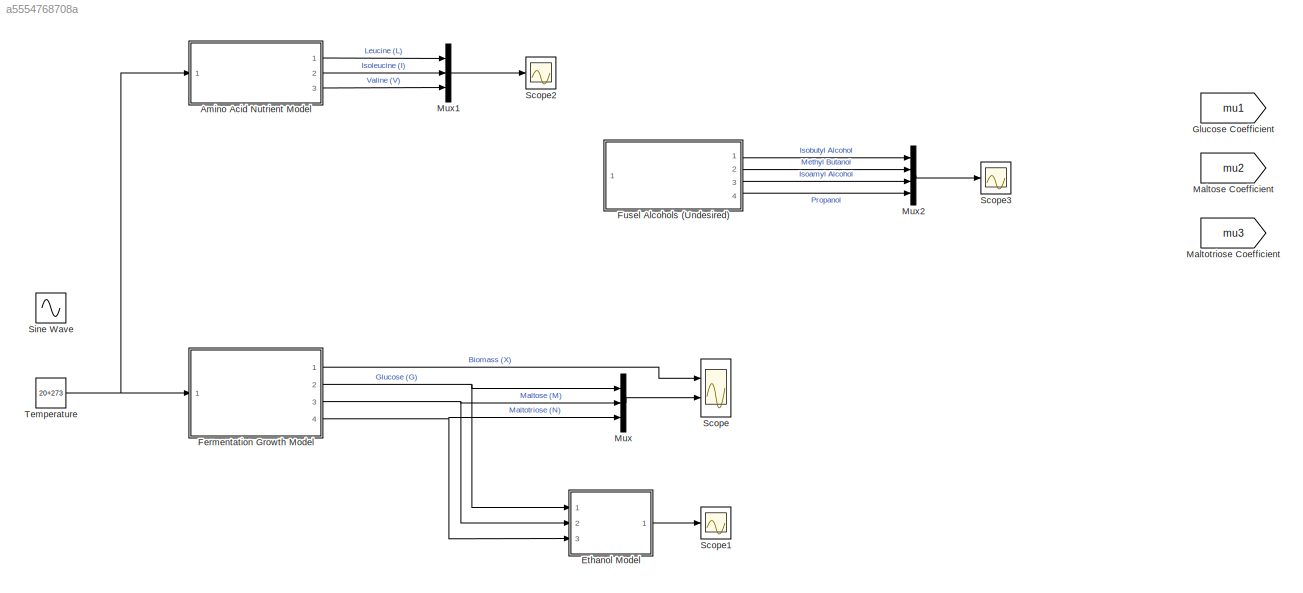
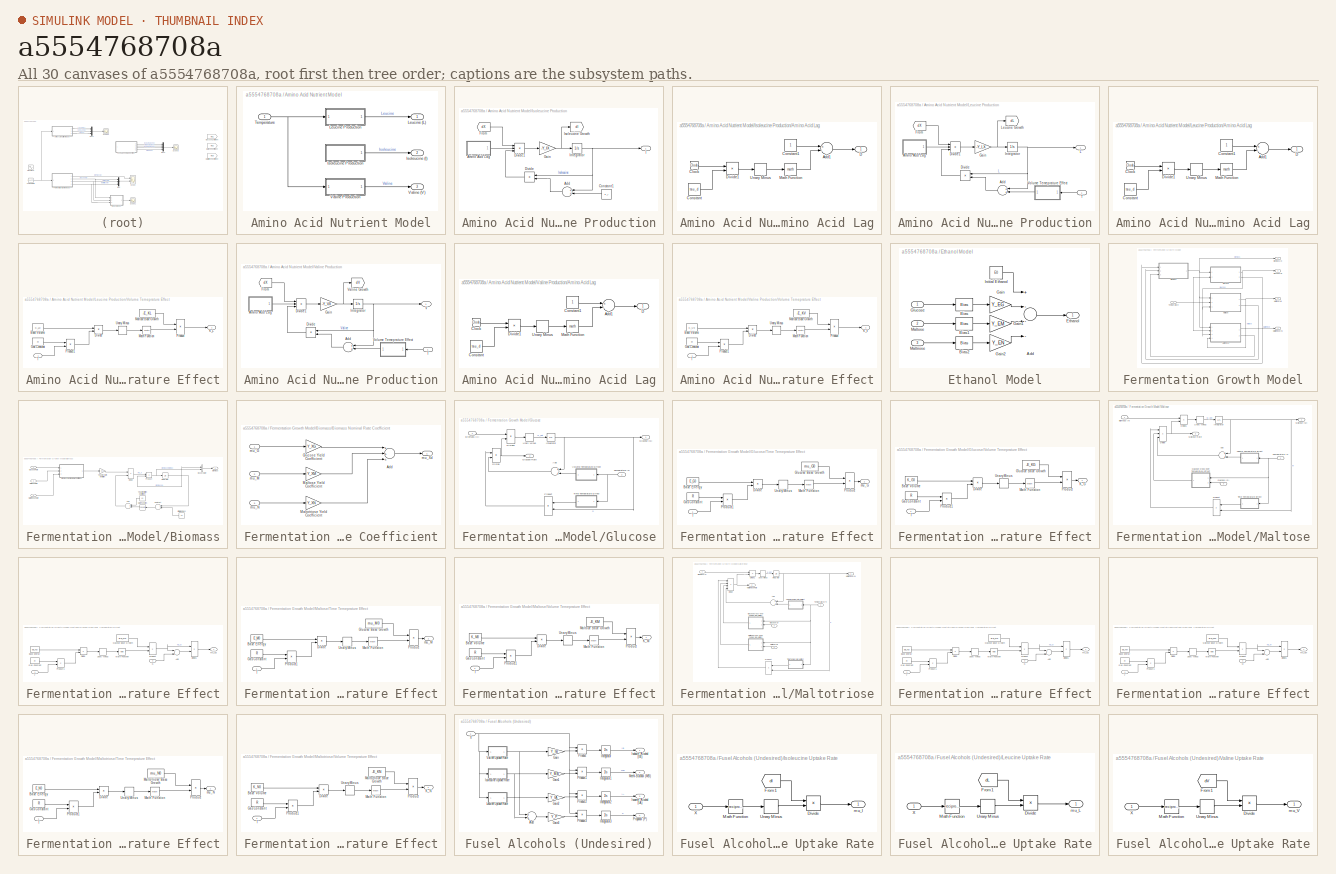
[diagram: thumbnail index - all 30 canvases of the model, root first then tree order]
MODEL slx_a5554768708a
KIND model
CONFIG InitFcn = initParams();
BLOCK [SubSystem] Amino Acid Nutrient Model
  Ports = [1, 3]
  RequestExecContextInheritance = off
BLOCK [Outport] Amino Acid Nutrient Model/Isoleucine (I)
  IconDisplay = Port number
  Port = 2
BLOCK [SubSystem] Amino Acid Nutrient Model/Isoleucine Production
  Ports = [0, 1]
  RequestExecContextInheritance = off
BLOCK [Sum] Amino Acid Nutrient Model/Isoleucine Production/Add
  InputSameDT = off
  OutDataTypeStr = Inherit: Inherit via internal rule
  Ports = [2, 1]
  SaturateOnIntegerOverflow = off
BLOCK [SubSystem] Amino Acid Nutrient Model/Isoleucine Production/Amino Acid Lag
  Ports = [0, 1]
  RequestExecContextInheritance = off
BLOCK [Sum] Amino Acid Nutrient Model/Isoleucine Production/Amino Acid Lag/Add1
  InputSameDT = off
  Inputs = +-
  OutDataTypeStr = Inherit: Inherit via internal rule
  Ports = [2, 1]
  SaturateOnIntegerOverflow = off
BLOCK [Clock] Amino Acid Nutrient Model/Isoleucine Production/Amino Acid Lag/Clock
BLOCK [Constant] Amino Acid Nutrient Model/Isoleucine Production/Amino Acid Lag/Constant
  Value = tau_d
BLOCK [Constant] Amino Acid Nutrient Model/Isoleucine Production/Amino Acid Lag/Constant1
BLOCK [Outport] Amino Acid Nutrient Model/Isoleucine Production/Amino Acid Lag/D
  IconDisplay = Port number
BLOCK [Product] Amino Acid Nutrient Model/Isoleucine Production/Amino Acid Lag/Divide1
  InputSameDT = off
  Inputs = */
  OutDataTypeStr = Inherit: Inherit via internal rule
  Ports = [2, 1]
  RndMeth = Floor
  SaturateOnIntegerOverflow = off
BLOCK [Math] Amino Acid Nutrient Model/Isoleucine Production/Amino Acid Lag/Math Function
  Ports = [1, 1]
BLOCK [UnaryMinus] Amino Acid Nutrient Model/Isoleucine Production/Amino Acid Lag/Unary Minus
BLOCK [Constant] Amino Acid Nutrient Model/Isoleucine Production/Constant1
  Value = K_I
BLOCK [Product] Amino Acid Nutrient Model/Isoleucine Production/Divide
  InputSameDT = off
  Inputs = */
  OutDataTypeStr = Inherit: Inherit via internal rule
  Ports = [2, 1]
  RndMeth = Floor
  SaturateOnIntegerOverflow = off
BLOCK [Product] Amino Acid Nutrient Model/Isoleucine Production/Divide1
  InputSameDT = off
  Inputs = ***
  OutDataTypeStr = Inherit: Inherit via internal rule
  Ports = [3, 1]
  RndMeth = Floor
  SaturateOnIntegerOverflow = off
BLOCK [From] Amino Acid Nutrient Model/Isoleucine Production/From
  GotoTag = dX
  TagVisibility = global
BLOCK [Gain] Amino Acid Nutrient Model/Isoleucine Production/Gain
  Gain = -Y_IX
  OutDataTypeStr = Inherit: Inherit via internal rule
  ParamDataTypeStr = Inherit: Inherit via internal rule
  SaturateOnIntegerOverflow = off
BLOCK [Outport] Amino Acid Nutrient Model/Isoleucine Production/I
  IconDisplay = Port number
BLOCK [Integrator] Amino Acid Nutrient Model/Isoleucine Production/Integrator
  InitialCondition = I0
  Ports = [1, 1]
BLOCK [Goto] Amino Acid Nutrient Model/Isoleucine Production/Isoleucine Growth
  GotoTag = dI
  TagVisibility = global
BLOCK [Outport] Amino Acid Nutrient Model/Leucine (L)
  IconDisplay = Port number
BLOCK [SubSystem] Amino Acid Nutrient Model/Leucine Production
  Ports = [1, 1]
  RequestExecContextInheritance = off
BLOCK [Sum] Amino Acid Nutrient Model/Leucine Production/Add
  InputSameDT = off
  OutDataTypeStr = Inherit: Inherit via internal rule
  Ports = [2, 1]
  SaturateOnIntegerOverflow = off
BLOCK [SubSystem] Amino Acid Nutrient Model/Leucine Production/Amino Acid Lag
  Ports = [0, 1]
  RequestExecContextInheritance = off
BLOCK [Sum] Amino Acid Nutrient Model/Leucine Production/Amino Acid Lag/Add1
  InputSameDT = off
  Inputs = +-
  OutDataTypeStr = Inherit: Inherit via internal rule
  Ports = [2, 1]
  SaturateOnIntegerOverflow = off
BLOCK [Clock] Amino Acid Nutrient Model/Leucine Production/Amino Acid Lag/Clock
BLOCK [Constant] Amino Acid Nutrient Model/Leucine Production/Amino Acid Lag/Constant
  Value = tau_d
BLOCK [Constant] Amino Acid Nutrient Model/Leucine Production/Amino Acid Lag/Constant1
BLOCK [Outport] Amino Acid Nutrient Model/Leucine Production/Amino Acid Lag/D
  IconDisplay = Port number
BLOCK [Product] Amino Acid Nutrient Model/Leucine Production/Amino Acid Lag/Divide1
  InputSameDT = off
  Inputs = */
  OutDataTypeStr = Inherit: Inherit via internal rule
  Ports = [2, 1]
  RndMeth = Floor
  SaturateOnIntegerOverflow = off
BLOCK [Math] Amino Acid Nutrient Model/Leucine Production/Amino Acid Lag/Math Function
  Ports = [1, 1]
BLOCK [UnaryMinus] Amino Acid Nutrient Model/Leucine Production/Amino Acid Lag/Unary Minus
BLOCK [Product] Amino Acid Nutrient Model/Leucine Production/Divide
  InputSameDT = off
  Inputs = */
  OutDataTypeStr = Inherit: Inherit via internal rule
  Ports = [2, 1]
  RndMeth = Floor
  SaturateOnIntegerOverflow = off
BLOCK [Product] Amino Acid Nutrient Model/Leucine Production/Divide1
  InputSameDT = off
  Inputs = ***
  OutDataTypeStr = Inherit: Inherit via internal rule
  Ports = [3, 1]
  RndMeth = Floor
  SaturateOnIntegerOverflow = off
BLOCK [From] Amino Acid Nutrient Model/Leucine Production/From
  GotoTag = dX
  TagVisibility = global
BLOCK [Gain] Amino Acid Nutrient Model/Leucine Production/Gain
  Gain = -Y_LX
  OutDataTypeStr = Inherit: Inherit via internal rule
  ParamDataTypeStr = Inherit: Inherit via internal rule
  SaturateOnIntegerOverflow = off
BLOCK [Integrator] Amino Acid Nutrient Model/Leucine Production/Integrator
  InitialCondition = L0
  Ports = [1, 1]
BLOCK [Outport] Amino Acid Nutrient Model/Leucine Production/L
  IconDisplay = Port number
BLOCK [Goto] Amino Acid Nutrient Model/Leucine Production/Leucine Growth
  GotoTag = dL
  TagVisibility = global
BLOCK [Inport] Amino Acid Nutrient Model/Leucine Production/T
  IconDisplay = Port number
BLOCK [SubSystem] Amino Acid Nutrient Model/Leucine Production/Volume Temeprature Effect
  Ports = [1, 1]
  RequestExecContextInheritance = off
BLOCK [Constant] Amino Acid Nutrient Model/Leucine Production/Volume Temeprature Effect/Base Volume
  Value = K_L0
BLOCK [Product] Amino Acid Nutrient Model/Leucine Production/Volume Temeprature Effect/Divide
  InputSameDT = off
  Inputs = */
  OutDataTypeStr = Inherit: Inherit via internal rule
  Ports = [2, 1]
  RndMeth = Floor
  SaturateOnIntegerOverflow = off
BLOCK [Constant] Amino Acid Nutrient Model/Leucine Production/Volume Temeprature Effect/Gas Constant
  Value = R
BLOCK [Outport] Amino Acid Nutrient Model/Leucine Production/Volume Temeprature Effect/K_L
  IconDisplay = Port number
BLOCK [Constant] Amino Acid Nutrient Model/Leucine Production/Volume Temeprature Effect/Maltose Base Growth
  Value = -E_KL
BLOCK [Math] Amino Acid Nutrient Model/Leucine Production/Volume Temeprature Effect/Math Function
  Ports = [1, 1]
BLOCK [Product] Amino Acid Nutrient Model/Leucine Production/Volume Temeprature Effect/Product
  InputSameDT = off
  OutDataTypeStr = Inherit: Inherit via internal rule
  Ports = [2, 1]
  RndMeth = Floor
  SaturateOnIntegerOverflow = off
BLOCK [Product] Amino Acid Nutrient Model/Leucine Production/Volume Temeprature Effect/Product1
  InputSameDT = off
  OutDataTypeStr = Inherit: Inherit via internal rule
  Ports = [2, 1]
  RndMeth = Floor
  SaturateOnIntegerOverflow = off
BLOCK [Inport] Amino Acid Nutrient Model/Leucine Production/Volume Temeprature Effect/T
  IconDisplay = Port number
BLOCK [UnaryMinus] Amino Acid Nutrient Model/Leucine Production/Volume Temeprature Effect/Unary Minus
BLOCK [Inport] Amino Acid Nutrient Model/Temperature
  IconDisplay = Port number
BLOCK [Outport] Amino Acid Nutrient Model/Valine (V)
  IconDisplay = Port number
  Port = 3
BLOCK [SubSystem] Amino Acid Nutrient Model/Valine Production
  Ports = [1, 1]
  RequestExecContextInheritance = off
BLOCK [Sum] Amino Acid Nutrient Model/Valine Production/Add
  InputSameDT = off
  OutDataTypeStr = Inherit: Inherit via internal rule
  Ports = [2, 1]
  SaturateOnIntegerOverflow = off
BLOCK [SubSystem] Amino Acid Nutrient Model/Valine Production/Amino Acid Lag
  Ports = [0, 1]
  RequestExecContextInheritance = off
BLOCK [Sum] Amino Acid Nutrient Model/Valine Production/Amino Acid Lag/Add1
  InputSameDT = off
  Inputs = +-
  OutDataTypeStr = Inherit: Inherit via internal rule
  Ports = [2, 1]
  SaturateOnIntegerOverflow = off
BLOCK [Clock] Amino Acid Nutrient Model/Valine Production/Amino Acid Lag/Clock
BLOCK [Constant] Amino Acid Nutrient Model/Valine Production/Amino Acid Lag/Constant
  Value = tau_d
BLOCK [Constant] Amino Acid Nutrient Model/Valine Production/Amino Acid Lag/Constant1
BLOCK [Outport] Amino Acid Nutrient Model/Valine Production/Amino Acid Lag/D
  IconDisplay = Port number
BLOCK [Product] Amino Acid Nutrient Model/Valine Production/Amino Acid Lag/Divide1
  InputSameDT = off
  Inputs = */
  OutDataTypeStr = Inherit: Inherit via internal rule
  Ports = [2, 1]
  RndMeth = Floor
  SaturateOnIntegerOverflow = off
BLOCK [Math] Amino Acid Nutrient Model/Valine Production/Amino Acid Lag/Math Function
  Ports = [1, 1]
BLOCK [UnaryMinus] Amino Acid Nutrient Model/Valine Production/Amino Acid Lag/Unary Minus
BLOCK [Product] Amino Acid Nutrient Model/Valine Production/Divide
  InputSameDT = off
  Inputs = */
  OutDataTypeStr = Inherit: Inherit via internal rule
  Ports = [2, 1]
  RndMeth = Floor
  SaturateOnIntegerOverflow = off
BLOCK [Product] Amino Acid Nutrient Model/Valine Production/Divide1
  InputSameDT = off
  Inputs = ***
  OutDataTypeStr = Inherit: Inherit via internal rule
  Ports = [3, 1]
  RndMeth = Floor
  SaturateOnIntegerOverflow = off
BLOCK [From] Amino Acid Nutrient Model/Valine Production/From
  GotoTag = dX
  TagVisibility = global
BLOCK [Gain] Amino Acid Nutrient Model/Valine Production/Gain
  Gain = -Y_VX
  OutDataTypeStr = Inherit: Inherit via internal rule
  ParamDataTypeStr = Inherit: Inherit via internal rule
  SaturateOnIntegerOverflow = off
BLOCK [Integrator] Amino Acid Nutrient Model/Valine Production/Integrator
  InitialCondition = V0
  Ports = [1, 1]
BLOCK [Inport] Amino Acid Nutrient Model/Valine Production/T
  IconDisplay = Port number
BLOCK [Outport] Amino Acid Nutrient Model/Valine Production/V
  IconDisplay = Port number
BLOCK [Goto] Amino Acid Nutrient Model/Valine Production/Valine Growth
  GotoTag = dV
  TagVisibility = global
BLOCK [SubSystem] Amino Acid Nutrient Model/Valine Production/Volume Temeprature Effect
  Ports = [1, 1]
  RequestExecContextInheritance = off
BLOCK [Constant] Amino Acid Nutrient Model/Valine Production/Volume Temeprature Effect/Base Volume
  Value = K_V0
BLOCK [Product] Amino Acid Nutrient Model/Valine Production/Volume Temeprature Effect/Divide
  InputSameDT = off
  Inputs = */
  OutDataTypeStr = Inherit: Inherit via internal rule
  Ports = [2, 1]
  RndMeth = Floor
  SaturateOnIntegerOverflow = off
BLOCK [Constant] Amino Acid Nutrient Model/Valine Production/Volume Temeprature Effect/Gas Constant
  Value = R
BLOCK [Outport] Amino Acid Nutrient Model/Valine Production/Volume Temeprature Effect/K_V
  IconDisplay = Port number
BLOCK [Constant] Amino Acid Nutrient Model/Valine Production/Volume Temeprature Effect/Maltose Base Growth
  Value = -E_KV
BLOCK [Math] Amino Acid Nutrient Model/Valine Production/Volume Temeprature Effect/Math Function
  Ports = [1, 1]
BLOCK [Product] Amino Acid Nutrient Model/Valine Production/Volume Temeprature Effect/Product
  InputSameDT = off
  OutDataTypeStr = Inherit: Inherit via internal rule
  Ports = [2, 1]
  RndMeth = Floor
  SaturateOnIntegerOverflow = off
BLOCK [Product] Amino Acid Nutrient Model/Valine Production/Volume Temeprature Effect/Product1
  InputSameDT = off
  OutDataTypeStr = Inherit: Inherit via internal rule
  Ports = [2, 1]
  RndMeth = Floor
  SaturateOnIntegerOverflow = off
BLOCK [Inport] Amino Acid Nutrient Model/Valine Production/Volume Temeprature Effect/T
  IconDisplay = Port number
BLOCK [UnaryMinus] Amino Acid Nutrient Model/Valine Production/Volume Temeprature Effect/Unary Minus
BLOCK [SubSystem] Ethanol Model
  Ports = [3, 1]
  RequestExecContextInheritance = off
BLOCK [Sum] Ethanol Model/Add
  InputSameDT = off
  Inputs = +---
  OutDataTypeStr = Inherit: Inherit via internal rule
  Ports = [4, 1]
  SaturateOnIntegerOverflow = off
BLOCK [Bias] Ethanol Model/Bias
  Bias = -G0
  SaturateOnIntegerOverflow = off
BLOCK [Bias] Ethanol Model/Bias1
  Bias = -M0
  SaturateOnIntegerOverflow = off
BLOCK [Bias] Ethanol Model/Bias2
  Bias = -N0
  SaturateOnIntegerOverflow = off
BLOCK [Outport] Ethanol Model/Ethanol
  IconDisplay = Port number
BLOCK [Gain] Ethanol Model/Gain
  Gain = Y_EG
  OutDataTypeStr = Inherit: Inherit via internal rule
  ParamDataTypeStr = Inherit: Inherit via internal rule
  SaturateOnIntegerOverflow = off
BLOCK [Gain] Ethanol Model/Gain1
  Gain = Y_EM
  OutDataTypeStr = Inherit: Inherit via internal rule
  ParamDataTypeStr = Inherit: Inherit via internal rule
  SaturateOnIntegerOverflow = off
BLOCK [Gain] Ethanol Model/Gain2
  Gain = Y_EN
  OutDataTypeStr = Inherit: Inherit via internal rule
  ParamDataTypeStr = Inherit: Inherit via internal rule
  SaturateOnIntegerOverflow = off
BLOCK [Inport] Ethanol Model/Glucose
  IconDisplay = Port number
BLOCK [Constant] Ethanol Model/Initial Ethanol
  Value = E0
BLOCK [Inport] Ethanol Model/Maltose
  IconDisplay = Port number
  Port = 2
BLOCK [Inport] Ethanol Model/Maltriose
  IconDisplay = Port number
  Port = 3
BLOCK [SubSystem] Fermentation Growth Model
  Ports = [1, 4]
  RequestExecContextInheritance = off
BLOCK [SubSystem] Fermentation Growth Model/Biomass
  Ports = [3, 1]
  RequestExecContextInheritance = off
BLOCK [Outport] Fermentation Growth Model/Biomass (X)
  IconDisplay = Port number
BLOCK [Sum] Fermentation Growth Model/Biomass/Add
  InputSameDT = off
  OutDataTypeStr = Inherit: Inherit via internal rule
  Ports = [2, 1]
  SaturateOnIntegerOverflow = off
BLOCK [Outport] Fermentation Growth Model/Biomass/Biomass
  IconDisplay = Port number
BLOCK [SubSystem] Fermentation Growth Model/Biomass/Biomass Nominal Rate Coefficient
  Ports = [3, 1]
  RequestExecContextInheritance = off
BLOCK [Sum] Fermentation Growth Model/Biomass/Biomass Nominal Rate Coefficient/Add
  InputSameDT = off
  Inputs = +++
  OutDataTypeStr = Inherit: Inherit via internal rule
  Ports = [3, 1]
  SaturateOnIntegerOverflow = off
BLOCK [Gain] Fermentation Growth Model/Biomass/Biomass Nominal Rate Coefficient/Glucose Yield Coefficient
  Gain = Y_XG
  OutDataTypeStr = Inherit: Inherit via internal rule
  ParamDataTypeStr = Inherit: Inherit via internal rule
  SaturateOnIntegerOverflow = off
BLOCK [Gain] Fermentation Growth Model/Biomass/Biomass Nominal Rate Coefficient/Maltose Yield Coefficient
  Gain = Y_XM
  OutDataTypeStr = Inherit: Inherit via internal rule
  ParamDataTypeStr = Inherit: Inherit via internal rule
  SaturateOnIntegerOverflow = off
BLOCK [Gain] Fermentation Growth Model/Biomass/Biomass Nominal Rate Coefficient/Maltotriose Yield Coefficient
  Gain = Y_XN
  OutDataTypeStr = Inherit: Inherit via internal rule
  ParamDataTypeStr = Inherit: Inherit via internal rule
  SaturateOnIntegerOverflow = off
BLOCK [Inport] Fermentation Growth Model/Biomass/Biomass Nominal Rate Coefficient/mu_G
  IconDisplay = Port number
BLOCK [Inport] Fermentation Growth Model/Biomass/Biomass Nominal Rate Coefficient/mu_M
  IconDisplay = Port number
  Port = 2
BLOCK [Inport] Fermentation Growth Model/Biomass/Biomass Nominal Rate Coefficient/mu_N
  IconDisplay = Port number
  Port = 3
BLOCK [Outport] Fermentation Growth Model/Biomass/Biomass Nominal Rate Coefficient/mu_Xd
  IconDisplay = Port number
BLOCK [BusCreator] Fermentation Growth Model/Biomass/Bus Creator
  DisplayOption = bar
  Inputs = 2
  Ports = [2, 1]
BLOCK [Product] Fermentation Growth Model/Biomass/Divide
  InputSameDT = off
  Inputs = */
  OutDataTypeStr = Inherit: Inherit via internal rule
  Ports = [2, 1]
  RndMeth = Floor
  SaturateOnIntegerOverflow = off
BLOCK [Inport] Fermentation Growth Model/Biomass/Glucose Rate
  IconDisplay = Port number
BLOCK [Constant] Fermentation Growth Model/Biomass/Initial Biomass
  Value = X0
BLOCK [Integrator] Fermentation Growth Model/Biomass/Integrator
  InitialCondition = X0
  LimitOutput = on
  LowerSaturationLimit = 0
  Ports = [1, 1]
BLOCK [Inport] Fermentation Growth Model/Biomass/Maltose Rate
  IconDisplay = Port number
  Port = 2
BLOCK [Inport] Fermentation Growth Model/Biomass/Maltotriose Rate
  IconDisplay = Port number
  Port = 3
BLOCK [Math] Fermentation Growth Model/Biomass/Math Function
  Operator = square
  Ports = [1, 1]
BLOCK [Product] Fermentation Growth Model/Biomass/Product
  InputSameDT = off
  OutDataTypeStr = Inherit: Inherit via internal rule
  Ports = [2, 1]
  RndMeth = Floor
  SaturateOnIntegerOverflow = off
BLOCK [Sum] Fermentation Growth Model/Biomass/Subtract
  InputSameDT = off
  Inputs = +-
  OutDataTypeStr = Inherit: Inherit via internal rule
  Ports = [2, 1]
  SaturateOnIntegerOverflow = off
BLOCK [Gain] Fermentation Growth Model/Biomass/Yeast Growth Inhibition
  Gain = Kx
  OutDataTypeStr = Inherit: Inherit via internal rule
  ParamDataTypeStr = Inherit: Inherit via internal rule
  SaturateOnIntegerOverflow = off
BLOCK [Constant] Fermentation Growth Model/Biomass/Yeast Inhibition Coefficient
  Value = Kx
BLOCK [SubSystem] Fermentation Growth Model/Glucose
  Ports = [2, 2]
  RequestExecContextInheritance = off
BLOCK [Outport] Fermentation Growth Model/Glucose (G)
  IconDisplay = Port number
  Port = 2
BLOCK [Sum] Fermentation Growth Model/Glucose/Add
  InputSameDT = off
  OutDataTypeStr = Inherit: Inherit via internal rule
  Ports = [2, 1]
  SaturateOnIntegerOverflow = off
BLOCK [Inport] Fermentation Growth Model/Glucose/Biomass (X)
  IconDisplay = Port number
BLOCK [Product] Fermentation Growth Model/Glucose/Divide
  InputSameDT = off
  Inputs = */
  OutDataTypeStr = Inherit: Inherit via internal rule
  Ports = [2, 1]
  RndMeth = Floor
  SaturateOnIntegerOverflow = off
BLOCK [Product] Fermentation Growth Model/Glucose/Divide1
  InputSameDT = off
  Inputs = **
  OutDataTypeStr = Inherit: Inherit via internal rule
  Ports = [2, 1]
  RndMeth = Floor
  SaturateOnIntegerOverflow = off
BLOCK [Outport] Fermentation Growth Model/Glucose/Glucose (G)
  IconDisplay = Port number
BLOCK [Outport] Fermentation Growth Model/Glucose/Glucose Rate
  IconDisplay = Port number
  Port = 2
BLOCK [Integrator] Fermentation Growth Model/Glucose/Integrator
  InitialCondition = G0
  LimitOutput = on
  LowerSaturationLimit = 0
  Ports = [1, 1]
BLOCK [Product] Fermentation Growth Model/Glucose/Product
  InputSameDT = off
  OutDataTypeStr = Inherit: Inherit via internal rule
  Ports = [2, 1]
  RndMeth = Floor
  SaturateOnIntegerOverflow = off
BLOCK [Inport] Fermentation Growth Model/Glucose/Temperature (T)
  IconDisplay = Port number
  Port = 2
BLOCK [SubSystem] Fermentation Growth Model/Glucose/Time Temeprature Effect
  Ports = [1, 1]
  RequestExecContextInheritance = off
BLOCK [Constant] Fermentation Growth Model/Glucose/Time Temeprature Effect/Base Energy
  Value = E_G0
BLOCK [Product] Fermentation Growth Model/Glucose/Time Temeprature Effect/Divide
  InputSameDT = off
  Inputs = */
  OutDataTypeStr = Inherit: Inherit via internal rule
  Ports = [2, 1]
  RndMeth = Floor
  SaturateOnIntegerOverflow = off
BLOCK [Constant] Fermentation Growth Model/Glucose/Time Temeprature Effect/Gas Constant
  Value = R
BLOCK [Constant] Fermentation Growth Model/Glucose/Time Temeprature Effect/Glucose Base Growth
  Value = mu_G0
BLOCK [Math] Fermentation Growth Model/Glucose/Time Temeprature Effect/Math Function
  Ports = [1, 1]
BLOCK [Product] Fermentation Growth Model/Glucose/Time Temeprature Effect/Product
  InputSameDT = off
  OutDataTypeStr = Inherit: Inherit via internal rule
  Ports = [2, 1]
  RndMeth = Floor
  SaturateOnIntegerOverflow = off
BLOCK [Product] Fermentation Growth Model/Glucose/Time Temeprature Effect/Product1
  InputSameDT = off
  OutDataTypeStr = Inherit: Inherit via internal rule
  Ports = [2, 1]
  RndMeth = Floor
  SaturateOnIntegerOverflow = off
BLOCK [Inport] Fermentation Growth Model/Glucose/Time Temeprature Effect/T
  IconDisplay = Port number
BLOCK [UnaryMinus] Fermentation Growth Model/Glucose/Time Temeprature Effect/Unary Minus
BLOCK [Outport] Fermentation Growth Model/Glucose/Time Temeprature Effect/mu_G
  IconDisplay = Port number
BLOCK [UnaryMinus] Fermentation Growth Model/Glucose/Unary Minus
BLOCK [SubSystem] Fermentation Growth Model/Glucose/Volume Temeprature Effect
  Ports = [1, 1]
  RequestExecContextInheritance = off
BLOCK [Constant] Fermentation Growth Model/Glucose/Volume Temeprature Effect/Base Volume
  Value = K_G0
BLOCK [Product] Fermentation Growth Model/Glucose/Volume Temeprature Effect/Divide
  InputSameDT = off
  Inputs = */
  OutDataTypeStr = Inherit: Inherit via internal rule
  Ports = [2, 1]
  RndMeth = Floor
  SaturateOnIntegerOverflow = off
BLOCK [Constant] Fermentation Growth Model/Glucose/Volume Temeprature Effect/Gas Constant
  Value = R
BLOCK [Constant] Fermentation Growth Model/Glucose/Volume Temeprature Effect/Glucose Base Growth
  Value = -E_KG
BLOCK [Outport] Fermentation Growth Model/Glucose/Volume Temeprature Effect/K_G
  IconDisplay = Port number
BLOCK [Math] Fermentation Growth Model/Glucose/Volume Temeprature Effect/Math Function
  Ports = [1, 1]
BLOCK [Product] Fermentation Growth Model/Glucose/Volume Temeprature Effect/Product
  InputSameDT = off
  OutDataTypeStr = Inherit: Inherit via internal rule
  Ports = [2, 1]
  RndMeth = Floor
  SaturateOnIntegerOverflow = off
BLOCK [Product] Fermentation Growth Model/Glucose/Volume Temeprature Effect/Product1
  InputSameDT = off
  OutDataTypeStr = Inherit: Inherit via internal rule
  Ports = [2, 1]
  RndMeth = Floor
  SaturateOnIntegerOverflow = off
BLOCK [Inport] Fermentation Growth Model/Glucose/Volume Temeprature Effect/T
  IconDisplay = Port number
BLOCK [UnaryMinus] Fermentation Growth Model/Glucose/Volume Temeprature Effect/Unary Minus
BLOCK [SubSystem] Fermentation Growth Model/Maltose
  Ports = [3, 2]
  RequestExecContextInheritance = off
BLOCK [Outport] Fermentation Growth Model/Maltose (M)
  IconDisplay = Port number
  Port = 3
BLOCK [Sum] Fermentation Growth Model/Maltose/Add
  InputSameDT = off
  OutDataTypeStr = Inherit: Inherit via internal rule
  Ports = [2, 1]
  SaturateOnIntegerOverflow = off
BLOCK [Inport] Fermentation Growth Model/Maltose/Biomass (X)
  IconDisplay = Port number
BLOCK [Product] Fermentation Growth Model/Maltose/Divide
  InputSameDT = off
  Inputs = **/
  OutDataTypeStr = Inherit: Inherit via internal rule
  Ports = [3, 1]
  RndMeth = Floor
  SaturateOnIntegerOverflow = off
BLOCK [Product] Fermentation Growth Model/Maltose/Divide1
  InputSameDT = off
  Inputs = **
  OutDataTypeStr = Inherit: Inherit via internal rule
  Ports = [2, 1]
  RndMeth = Floor
  SaturateOnIntegerOverflow = off
BLOCK [Inport] Fermentation Growth Model/Maltose/Glucose (G)
  IconDisplay = Port number
  Port = 3
BLOCK [SubSystem] Fermentation Growth Model/Maltose/Glucose cross-over Temeprature Effect
  Ports = [2, 1]
  RequestExecContextInheritance = off
BLOCK [Sum] Fermentation Growth Model/Maltose/Glucose cross-over Temeprature Effect/Add
  InputSameDT = off
  OutDataTypeStr = Inherit: Inherit via internal rule
  Ports = [2, 1]
  SaturateOnIntegerOverflow = off
BLOCK [Constant] Fermentation Growth Model/Maltose/Glucose cross-over Temeprature Effect/Base Energy
  Value = Ed_KG
BLOCK [Product] Fermentation Growth Model/Maltose/Glucose cross-over Temeprature Effect/Divide
  InputSameDT = off
  Inputs = */
  OutDataTypeStr = Inherit: Inherit via internal rule
  Ports = [2, 1]
  RndMeth = Floor
  SaturateOnIntegerOverflow = off
BLOCK [Product] Fermentation Growth Model/Maltose/Glucose cross-over Temeprature Effect/Divide1
  InputSameDT = off
  Inputs = */
  OutDataTypeStr = Inherit: Inherit via internal rule
  Ports = [2, 1]
  RndMeth = Floor
  SaturateOnIntegerOverflow = off
BLOCK [Inport] Fermentation Growth Model/Maltose/Glucose cross-over Temeprature Effect/G
  IconDisplay = Port number
  Port = 2
BLOCK [Constant] Fermentation Growth Model/Maltose/Glucose cross-over Temeprature Effect/Gas Constant
  Value = R
BLOCK [Constant] Fermentation Growth Model/Maltose/Glucose cross-over Temeprature Effect/Glucose Base Growth
  Value = Ed_G0
BLOCK [Math] Fermentation Growth Model/Maltose/Glucose cross-over Temeprature Effect/Math Function
  Ports = [1, 1]
BLOCK [Product] Fermentation Growth Model/Maltose/Glucose cross-over Temeprature Effect/Product
  InputSameDT = off
  OutDataTypeStr = Inherit: Inherit via internal rule
  Ports = [2, 1]
  RndMeth = Floor
  SaturateOnIntegerOverflow = off
BLOCK [Product] Fermentation Growth Model/Maltose/Glucose cross-over Temeprature Effect/Product1
  InputSameDT = off
  OutDataTypeStr = Inherit: Inherit via internal rule
  Ports = [2, 1]
  RndMeth = Floor
  SaturateOnIntegerOverflow = off
BLOCK [Inport] Fermentation Growth Model/Maltose/Glucose cross-over Temeprature Effect/T
  IconDisplay = Port number
BLOCK [UnaryMinus] Fermentation Growth Model/Maltose/Glucose cross-over Temeprature Effect/Unary Minus
BLOCK [Outport] Fermentation Growth Model/Maltose/Glucose cross-over Temeprature Effect/mu_CG
  IconDisplay = Port number
BLOCK [Integrator] Fermentation Growth Model/Maltose/Integrator
  InitialCondition = M0
  LimitOutput = on
  LowerSaturationLimit = 0
  Ports = [1, 1]
BLOCK [Outport] Fermentation Growth Model/Maltose/Maltose (M)
  IconDisplay = Port number
BLOCK [Outport] Fermentation Growth Model/Maltose/Maltose Rate
  IconDisplay = Port number
  Port = 2
BLOCK [Product] Fermentation Growth Model/Maltose/Product
  InputSameDT = off
  OutDataTypeStr = Inherit: Inherit via internal rule
  Ports = [2, 1]
  RndMeth = Floor
  SaturateOnIntegerOverflow = off
BLOCK [Inport] Fermentation Growth Model/Maltose/Temperature (T)
  IconDisplay = Port number
  Port = 2
BLOCK [SubSystem] Fermentation Growth Model/Maltose/Time Temeprature Effect
  Ports = [1, 1]
  RequestExecContextInheritance = off
BLOCK [Constant] Fermentation Growth Model/Maltose/Time Temeprature Effect/Base Energy
  Value = E_M0
BLOCK [Product] Fermentation Growth Model/Maltose/Time Temeprature Effect/Divide
  InputSameDT = off
  Inputs = */
  OutDataTypeStr = Inherit: Inherit via internal rule
  Ports = [2, 1]
  RndMeth = Floor
  SaturateOnIntegerOverflow = off
BLOCK [Constant] Fermentation Growth Model/Maltose/Time Temeprature Effect/Gas Constant
  Value = R
BLOCK [Constant] Fermentation Growth Model/Maltose/Time Temeprature Effect/Glucose Base Growth
  Value = mu_M0
BLOCK [Math] Fermentation Growth Model/Maltose/Time Temeprature Effect/Math Function
  Ports = [1, 1]
BLOCK [Product] Fermentation Growth Model/Maltose/Time Temeprature Effect/Product
  InputSameDT = off
  OutDataTypeStr = Inherit: Inherit via internal rule
  Ports = [2, 1]
  RndMeth = Floor
  SaturateOnIntegerOverflow = off
BLOCK [Product] Fermentation Growth Model/Maltose/Time Temeprature Effect/Product1
  InputSameDT = off
  OutDataTypeStr = Inherit: Inherit via internal rule
  Ports = [2, 1]
  RndMeth = Floor
  SaturateOnIntegerOverflow = off
BLOCK [Inport] Fermentation Growth Model/Maltose/Time Temeprature Effect/T
  IconDisplay = Port number
BLOCK [UnaryMinus] Fermentation Growth Model/Maltose/Time Temeprature Effect/Unary Minus
BLOCK [Outport] Fermentation Growth Model/Maltose/Time Temeprature Effect/mu_M
  IconDisplay = Port number
BLOCK [UnaryMinus] Fermentation Growth Model/Maltose/Unary Minus
BLOCK [SubSystem] Fermentation Growth Model/Maltose/Volume Temeprature Effect
  Ports = [1, 1]
  RequestExecContextInheritance = off
BLOCK [Constant] Fermentation Growth Model/Maltose/Volume Temeprature Effect/Base Volume
  Value = K_M0
BLOCK [Product] Fermentation Growth Model/Maltose/Volume Temeprature Effect/Divide
  InputSameDT = off
  Inputs = */
  OutDataTypeStr = Inherit: Inherit via internal rule
  Ports = [2, 1]
  RndMeth = Floor
  SaturateOnIntegerOverflow = off
BLOCK [Constant] Fermentation Growth Model/Maltose/Volume Temeprature Effect/Gas Constant
  Value = R
BLOCK [Outport] Fermentation Growth Model/Maltose/Volume Temeprature Effect/K_M
  IconDisplay = Port number
BLOCK [Constant] Fermentation Growth Model/Maltose/Volume Temeprature Effect/Maltose Base Growth
  Value = -E_KM
BLOCK [Math] Fermentation Growth Model/Maltose/Volume Temeprature Effect/Math Function
  Ports = [1, 1]
BLOCK [Product] Fermentation Growth Model/Maltose/Volume Temeprature Effect/Product
  InputSameDT = off
  OutDataTypeStr = Inherit: Inherit via internal rule
  Ports = [2, 1]
  RndMeth = Floor
  SaturateOnIntegerOverflow = off
BLOCK [Product] Fermentation Growth Model/Maltose/Volume Temeprature Effect/Product1
  InputSameDT = off
  OutDataTypeStr = Inherit: Inherit via internal rule
  Ports = [2, 1]
  RndMeth = Floor
  SaturateOnIntegerOverflow = off
BLOCK [Inport] Fermentation Growth Model/Maltose/Volume Temeprature Effect/T
  IconDisplay = Port number
BLOCK [UnaryMinus] Fermentation Growth Model/Maltose/Volume Temeprature Effect/Unary Minus
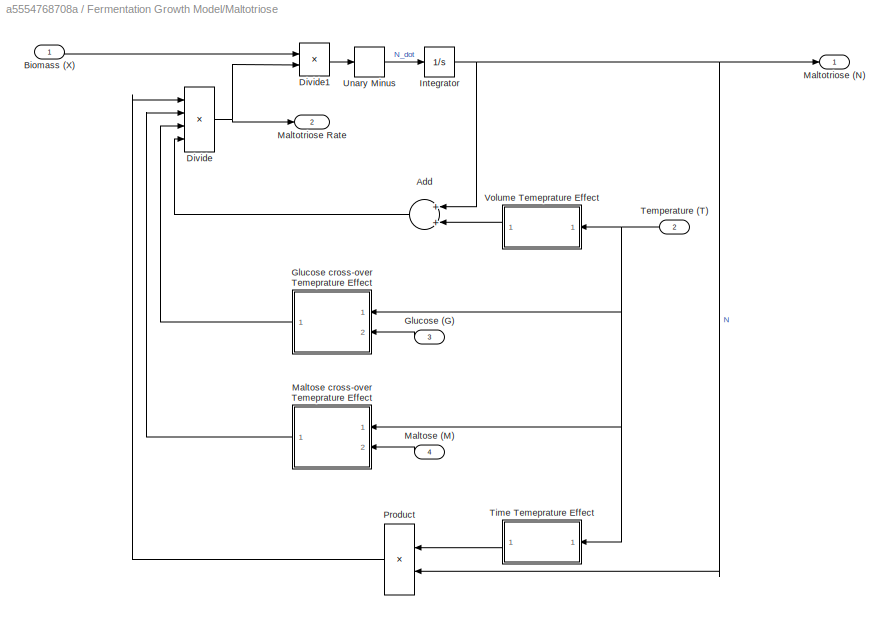
BLOCK [SubSystem] Fermentation Growth Model/Maltotriose
  Ports = [4, 2]
  RequestExecContextInheritance = off
BLOCK [Outport] Fermentation Growth Model/Maltotriose (N)
  IconDisplay = Port number
  Port = 4
BLOCK [Sum] Fermentation Growth Model/Maltotriose/Add
  InputSameDT = off
  OutDataTypeStr = Inherit: Inherit via internal rule
  Ports = [2, 1]
  SaturateOnIntegerOverflow = off
BLOCK [Inport] Fermentation Growth Model/Maltotriose/Biomass (X)
  IconDisplay = Port number
BLOCK [Product] Fermentation Growth Model/Maltotriose/Divide
  InputSameDT = off
  Inputs = ***/
  OutDataTypeStr = Inherit: Inherit via internal rule
  Ports = [4, 1]
  RndMeth = Floor
  SaturateOnIntegerOverflow = off
BLOCK [Product] Fermentation Growth Model/Maltotriose/Divide1
  InputSameDT = off
  Inputs = **
  OutDataTypeStr = Inherit: Inherit via internal rule
  Ports = [2, 1]
  RndMeth = Floor
  SaturateOnIntegerOverflow = off
BLOCK [Inport] Fermentation Growth Model/Maltotriose/Glucose (G)
  IconDisplay = Port number
  Port = 3
BLOCK [SubSystem] Fermentation Growth Model/Maltotriose/Glucose cross-over Temeprature Effect
  Ports = [2, 1]
  RequestExecContextInheritance = off
BLOCK [Sum] Fermentation Growth Model/Maltotriose/Glucose cross-over Temeprature Effect/Add
  InputSameDT = off
  OutDataTypeStr = Inherit: Inherit via internal rule
  Ports = [2, 1]
  SaturateOnIntegerOverflow = off
BLOCK [Constant] Fermentation Growth Model/Maltotriose/Glucose cross-over Temeprature Effect/Base Energy
  Value = Ed_KG
BLOCK [Product] Fermentation Growth Model/Maltotriose/Glucose cross-over Temeprature Effect/Divide
  InputSameDT = off
  Inputs = */
  OutDataTypeStr = Inherit: Inherit via internal rule
  Ports = [2, 1]
  RndMeth = Floor
  SaturateOnIntegerOverflow = off
BLOCK [Product] Fermentation Growth Model/Maltotriose/Glucose cross-over Temeprature Effect/Divide1
  InputSameDT = off
  Inputs = */
  OutDataTypeStr = Inherit: Inherit via internal rule
  Ports = [2, 1]
  RndMeth = Floor
  SaturateOnIntegerOverflow = off
BLOCK [Inport] Fermentation Growth Model/Maltotriose/Glucose cross-over Temeprature Effect/G
  IconDisplay = Port number
  Port = 2
BLOCK [Constant] Fermentation Growth Model/Maltotriose/Glucose cross-over Temeprature Effect/Gas Constant
  Value = R
BLOCK [Constant] Fermentation Growth Model/Maltotriose/Glucose cross-over Temeprature Effect/Glucose Base Growth
  Value = Ed_G0
BLOCK [Math] Fermentation Growth Model/Maltotriose/Glucose cross-over Temeprature Effect/Math Function
  Ports = [1, 1]
BLOCK [Product] Fermentation Growth Model/Maltotriose/Glucose cross-over Temeprature Effect/Product
  InputSameDT = off
  OutDataTypeStr = Inherit: Inherit via internal rule
  Ports = [2, 1]
  RndMeth = Floor
  SaturateOnIntegerOverflow = off
BLOCK [Product] Fermentation Growth Model/Maltotriose/Glucose cross-over Temeprature Effect/Product1
  InputSameDT = off
  OutDataTypeStr = Inherit: Inherit via internal rule
  Ports = [2, 1]
  RndMeth = Floor
  SaturateOnIntegerOverflow = off
BLOCK [Inport] Fermentation Growth Model/Maltotriose/Glucose cross-over Temeprature Effect/T
  IconDisplay = Port number
BLOCK [UnaryMinus] Fermentation Growth Model/Maltotriose/Glucose cross-over Temeprature Effect/Unary Minus
BLOCK [Outport] Fermentation Growth Model/Maltotriose/Glucose cross-over Temeprature Effect/mu_CG
  IconDisplay = Port number
BLOCK [Integrator] Fermentation Growth Model/Maltotriose/Integrator
  InitialCondition = N0
  LimitOutput = on
  LowerSaturationLimit = 0
  Ports = [1, 1]
BLOCK [Inport] Fermentation Growth Model/Maltotriose/Maltose (M)
  IconDisplay = Port number
  Port = 4
BLOCK [SubSystem] Fermentation Growth Model/Maltotriose/Maltose cross-over Temeprature Effect
  Ports = [2, 1]
  RequestExecContextInheritance = off
BLOCK [Sum] Fermentation Growth Model/Maltotriose/Maltose cross-over Temeprature Effect/Add
  InputSameDT = off
  OutDataTypeStr = Inherit: Inherit via internal rule
  Ports = [2, 1]
  SaturateOnIntegerOverflow = off
BLOCK [Constant] Fermentation Growth Model/Maltotriose/Maltose cross-over Temeprature Effect/Base Energy
  Value = Ed_KM
BLOCK [Product] Fermentation Growth Model/Maltotriose/Maltose cross-over Temeprature Effect/Divide
  InputSameDT = off
  Inputs = */
  OutDataTypeStr = Inherit: Inherit via internal rule
  Ports = [2, 1]
  RndMeth = Floor
  SaturateOnIntegerOverflow = off
BLOCK [Product] Fermentation Growth Model/Maltotriose/Maltose cross-over Temeprature Effect/Divide1
  InputSameDT = off
  Inputs = */
  OutDataTypeStr = Inherit: Inherit via internal rule
  Ports = [2, 1]
  RndMeth = Floor
  SaturateOnIntegerOverflow = off
BLOCK [Constant] Fermentation Growth Model/Maltotriose/Maltose cross-over Temeprature Effect/Gas Constant
  Value = R
BLOCK [Inport] Fermentation Growth Model/Maltotriose/Maltose cross-over Temeprature Effect/M
  IconDisplay = Port number
  Port = 2
BLOCK [Constant] Fermentation Growth Model/Maltotriose/Maltose cross-over Temeprature Effect/Maltose Base Growth
  Value = Ed_M0
BLOCK [Math] Fermentation Growth Model/Maltotriose/Maltose cross-over Temeprature Effect/Math Function
  Ports = [1, 1]
BLOCK [Product] Fermentation Growth Model/Maltotriose/Maltose cross-over Temeprature Effect/Product
  InputSameDT = off
  OutDataTypeStr = Inherit: Inherit via internal rule
  Ports = [2, 1]
  RndMeth = Floor
  SaturateOnIntegerOverflow = off
BLOCK [Product] Fermentation Growth Model/Maltotriose/Maltose cross-over Temeprature Effect/Product1
  InputSameDT = off
  OutDataTypeStr = Inherit: Inherit via internal rule
  Ports = [2, 1]
  RndMeth = Floor
  SaturateOnIntegerOverflow = off
BLOCK [Inport] Fermentation Growth Model/Maltotriose/Maltose cross-over Temeprature Effect/T
  IconDisplay = Port number
BLOCK [UnaryMinus] Fermentation Growth Model/Maltotriose/Maltose cross-over Temeprature Effect/Unary Minus
BLOCK [Outport] Fermentation Growth Model/Maltotriose/Maltose cross-over Temeprature Effect/mu_CM
  IconDisplay = Port number
BLOCK [Outport] Fermentation Growth Model/Maltotriose/Maltotriose (N)
  IconDisplay = Port number
BLOCK [Outport] Fermentation Growth Model/Maltotriose/Maltotriose Rate
  IconDisplay = Port number
  Port = 2
BLOCK [Product] Fermentation Growth Model/Maltotriose/Product
  InputSameDT = off
  OutDataTypeStr = Inherit: Inherit via internal rule
  Ports = [2, 1]
  RndMeth = Floor
  SaturateOnIntegerOverflow = off
BLOCK [Inport] Fermentation Growth Model/Maltotriose/Temperature (T)
  IconDisplay = Port number
  Port = 2
BLOCK [SubSystem] Fermentation Growth Model/Maltotriose/Time Temeprature Effect
  Ports = [1, 1]
  RequestExecContextInheritance = off
BLOCK [Constant] Fermentation Growth Model/Maltotriose/Time Temeprature Effect/Base Energy
  Value = E_N0
BLOCK [Product] Fermentation Growth Model/Maltotriose/Time Temeprature Effect/Divide
  InputSameDT = off
  Inputs = */
  OutDataTypeStr = Inherit: Inherit via internal rule
  Ports = [2, 1]
  RndMeth = Floor
  SaturateOnIntegerOverflow = off
BLOCK [Constant] Fermentation Growth Model/Maltotriose/Time Temeprature Effect/Gas Constant
  Value = R
BLOCK [Constant] Fermentation Growth Model/Maltotriose/Time Temeprature Effect/Maltotriose Base Growth
  Value = mu_N0
BLOCK [Math] Fermentation Growth Model/Maltotriose/Time Temeprature Effect/Math Function
  Ports = [1, 1]
BLOCK [Product] Fermentation Growth Model/Maltotriose/Time Temeprature Effect/Product
  InputSameDT = off
  OutDataTypeStr = Inherit: Inherit via internal rule
  Ports = [2, 1]
  RndMeth = Floor
  SaturateOnIntegerOverflow = off
BLOCK [Product] Fermentation Growth Model/Maltotriose/Time Temeprature Effect/Product1
  InputSameDT = off
  OutDataTypeStr = Inherit: Inherit via internal rule
  Ports = [2, 1]
  RndMeth = Floor
  SaturateOnIntegerOverflow = off
BLOCK [Inport] Fermentation Growth Model/Maltotriose/Time Temeprature Effect/T
  IconDisplay = Port number
BLOCK [UnaryMinus] Fermentation Growth Model/Maltotriose/Time Temeprature Effect/Unary Minus
BLOCK [Outport] Fermentation Growth Model/Maltotriose/Time Temeprature Effect/mu_N
  IconDisplay = Port number
BLOCK [UnaryMinus] Fermentation Growth Model/Maltotriose/Unary Minus
BLOCK [SubSystem] Fermentation Growth Model/Maltotriose/Volume Temeprature Effect
  Ports = [1, 1]
  RequestExecContextInheritance = off
BLOCK [Constant] Fermentation Growth Model/Maltotriose/Volume Temeprature Effect/Base Volume
  Value = K_N0
BLOCK [Product] Fermentation Growth Model/Maltotriose/Volume Temeprature Effect/Divide
  InputSameDT = off
  Inputs = */
  OutDataTypeStr = Inherit: Inherit via internal rule
  Ports = [2, 1]
  RndMeth = Floor
  SaturateOnIntegerOverflow = off
BLOCK [Constant] Fermentation Growth Model/Maltotriose/Volume Temeprature Effect/Gas Constant
  Value = R
BLOCK [Outport] Fermentation Growth Model/Maltotriose/Volume Temeprature Effect/K_N
  IconDisplay = Port number
BLOCK [Constant] Fermentation Growth Model/Maltotriose/Volume Temeprature Effect/Maltotriose Base Growth
  Value = -E_KN
BLOCK [Math] Fermentation Growth Model/Maltotriose/Volume Temeprature Effect/Math Function
  Ports = [1, 1]
BLOCK [Product] Fermentation Growth Model/Maltotriose/Volume Temeprature Effect/Product
  InputSameDT = off
  OutDataTypeStr = Inherit: Inherit via internal rule
  Ports = [2, 1]
  RndMeth = Floor
  SaturateOnIntegerOverflow = off
BLOCK [Product] Fermentation Growth Model/Maltotriose/Volume Temeprature Effect/Product1
  InputSameDT = off
  OutDataTypeStr = Inherit: Inherit via internal rule
  Ports = [2, 1]
  RndMeth = Floor
  SaturateOnIntegerOverflow = off
BLOCK [Inport] Fermentation Growth Model/Maltotriose/Volume Temeprature Effect/T
  IconDisplay = Port number
BLOCK [UnaryMinus] Fermentation Growth Model/Maltotriose/Volume Temeprature Effect/Unary Minus
BLOCK [Inport] Fermentation Growth Model/Temperature
  IconDisplay = Port number
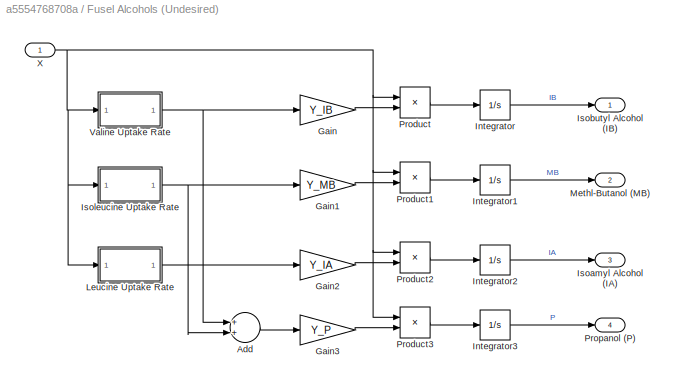
BLOCK [SubSystem] Fusel Alcohols (Undesired)
  Ports = [1, 4]
  RequestExecContextInheritance = off
BLOCK [Sum] Fusel Alcohols (Undesired)/Add
  InputSameDT = off
  OutDataTypeStr = Inherit: Inherit via internal rule
  Ports = [2, 1]
  SaturateOnIntegerOverflow = off
BLOCK [Gain] Fusel Alcohols (Undesired)/Gain
  Gain = Y_IB
  OutDataTypeStr = Inherit: Inherit via internal rule
  ParamDataTypeStr = Inherit: Inherit via internal rule
  SaturateOnIntegerOverflow = off
BLOCK [Gain] Fusel Alcohols (Undesired)/Gain1
  Gain = Y_MB
  OutDataTypeStr = Inherit: Inherit via internal rule
  ParamDataTypeStr = Inherit: Inherit via internal rule
  SaturateOnIntegerOverflow = off
BLOCK [Gain] Fusel Alcohols (Undesired)/Gain2
  Gain = Y_IA
  OutDataTypeStr = Inherit: Inherit via internal rule
  ParamDataTypeStr = Inherit: Inherit via internal rule
  SaturateOnIntegerOverflow = off
BLOCK [Gain] Fusel Alcohols (Undesired)/Gain3
  Gain = Y_P
  OutDataTypeStr = Inherit: Inherit via internal rule
  ParamDataTypeStr = Inherit: Inherit via internal rule
  SaturateOnIntegerOverflow = off
BLOCK [Integrator] Fusel Alcohols (Undesired)/Integrator
  Ports = [1, 1]
BLOCK [Integrator] Fusel Alcohols (Undesired)/Integrator1
  Ports = [1, 1]
BLOCK [Integrator] Fusel Alcohols (Undesired)/Integrator2
  Ports = [1, 1]
BLOCK [Integrator] Fusel Alcohols (Undesired)/Integrator3
  Ports = [1, 1]
BLOCK [Outport] Fusel Alcohols (Undesired)/Isoamyl Alcohol (IA)
  IconDisplay = Port number
  Port = 3
BLOCK [Outport] Fusel Alcohols (Undesired)/Isobutyl Alcohol (IB)
  IconDisplay = Port number
BLOCK [SubSystem] Fusel Alcohols (Undesired)/Isoleucine Uptake Rate
  Ports = [1, 1]
  RequestExecContextInheritance = off
BLOCK [Product] Fusel Alcohols (Undesired)/Isoleucine Uptake Rate/Divide
  InputSameDT = off
  Inputs = **
  OutDataTypeStr = Inherit: Inherit via internal rule
  Ports = [2, 1]
  RndMeth = Floor
  SaturateOnIntegerOverflow = off
BLOCK [From] Fusel Alcohols (Undesired)/Isoleucine Uptake Rate/From1
  GotoTag = dI
  TagVisibility = global
BLOCK [Math] Fusel Alcohols (Undesired)/Isoleucine Uptake Rate/Math Function
  Operator = reciprocal
  Ports = [1, 1]
BLOCK [UnaryMinus] Fusel Alcohols (Undesired)/Isoleucine Uptake Rate/Unary Minus
BLOCK [Inport] Fusel Alcohols (Undesired)/Isoleucine Uptake Rate/X
  IconDisplay = Port number
BLOCK [Outport] Fusel Alcohols (Undesired)/Isoleucine Uptake Rate/mu_I
  IconDisplay = Port number
BLOCK [SubSystem] Fusel Alcohols (Undesired)/Leucine Uptake Rate
  Ports = [1, 1]
  RequestExecContextInheritance = off
BLOCK [Product] Fusel Alcohols (Undesired)/Leucine Uptake Rate/Divide
  InputSameDT = off
  Inputs = **
  OutDataTypeStr = Inherit: Inherit via internal rule
  Ports = [2, 1]
  RndMeth = Floor
  SaturateOnIntegerOverflow = off
BLOCK [From] Fusel Alcohols (Undesired)/Leucine Uptake Rate/From1
  GotoTag = dL
  TagVisibility = global
BLOCK [Math] Fusel Alcohols (Undesired)/Leucine Uptake Rate/Math Function
  Operator = reciprocal
  Ports = [1, 1]
BLOCK [UnaryMinus] Fusel Alcohols (Undesired)/Leucine Uptake Rate/Unary Minus
BLOCK [Inport] Fusel Alcohols (Undesired)/Leucine Uptake Rate/X
  IconDisplay = Port number
BLOCK [Outport] Fusel Alcohols (Undesired)/Leucine Uptake Rate/mu_L
  IconDisplay = Port number
BLOCK [Outport] Fusel Alcohols (Undesired)/Methl-Butanol (MB)
  IconDisplay = Port number
  Port = 2
BLOCK [Product] Fusel Alcohols (Undesired)/Product
  InputSameDT = off
  OutDataTypeStr = Inherit: Inherit via internal rule
  Ports = [2, 1]
  RndMeth = Floor
  SaturateOnIntegerOverflow = off
BLOCK [Product] Fusel Alcohols (Undesired)/Product1
  InputSameDT = off
  OutDataTypeStr = Inherit: Inherit via internal rule
  Ports = [2, 1]
  RndMeth = Floor
  SaturateOnIntegerOverflow = off
BLOCK [Product] Fusel Alcohols (Undesired)/Product2
  InputSameDT = off
  OutDataTypeStr = Inherit: Inherit via internal rule
  Ports = [2, 1]
  RndMeth = Floor
  SaturateOnIntegerOverflow = off
BLOCK [Product] Fusel Alcohols (Undesired)/Product3
  InputSameDT = off
  OutDataTypeStr = Inherit: Inherit via internal rule
  Ports = [2, 1]
  RndMeth = Floor
  SaturateOnIntegerOverflow = off
BLOCK [Outport] Fusel Alcohols (Undesired)/Propanol (P)
  IconDisplay = Port number
  Port = 4
BLOCK [SubSystem] Fusel Alcohols (Undesired)/Valine Uptake Rate
  Ports = [1, 1]
  RequestExecContextInheritance = off
BLOCK [Product] Fusel Alcohols (Undesired)/Valine Uptake Rate/Divide
  InputSameDT = off
  Inputs = **
  OutDataTypeStr = Inherit: Inherit via internal rule
  Ports = [2, 1]
  RndMeth = Floor
  SaturateOnIntegerOverflow = off
BLOCK [From] Fusel Alcohols (Undesired)/Valine Uptake Rate/From1
  GotoTag = dV
  TagVisibility = global
BLOCK [Math] Fusel Alcohols (Undesired)/Valine Uptake Rate/Math Function
  Operator = reciprocal
  Ports = [1, 1]
BLOCK [UnaryMinus] Fusel Alcohols (Undesired)/Valine Uptake Rate/Unary Minus
BLOCK [Inport] Fusel Alcohols (Undesired)/Valine Uptake Rate/X
  IconDisplay = Port number
BLOCK [Outport] Fusel Alcohols (Undesired)/Valine Uptake Rate/mu_V
  IconDisplay = Port number
BLOCK [Inport] Fusel Alcohols (Undesired)/X
  IconDisplay = Port number
BLOCK [Goto] Glucose Coefficient
  Commented = on
  GotoTag = mu1
  TagVisibility = global
BLOCK [Goto] Maltose Coefficient
  Commented = on
  GotoTag = mu2
  TagVisibility = global
BLOCK [Goto] Maltotriose Coefficient
  Commented = on
  GotoTag = mu3
  TagVisibility = global
BLOCK [Mux] Mux
  DisplayOption = bar
  Inputs = 3
  Ports = [3, 1]
BLOCK [Mux] Mux1
  DisplayOption = bar
  Inputs = 3
  Ports = [3, 1]
BLOCK [Mux] Mux2
  DisplayOption = bar
  Ports = [4, 1]
BLOCK [Scope] Scope
  DataFormat = StructureWithTime
  Floating = off
  LegendLocations = 0.83765     0.91258       0.122     0.02681\n0.82478     0.40488     0.13487    0.067377
  LimitDataPoints = off
  NumInputPorts = 2
  Ports = [2]
  SampleTime = 0
  ShowLegends = on
  YMax = 17~230
  YMin = 0~0
BLOCK [Scope] Scope1
  Floating = off
  LimitDataPoints = off
  NumInputPorts = 1
  Ports = [1]
  SaveName = ScopeData1
  ShowLegends = off
BLOCK [Scope] Scope2
  Floating = off
  LimitDataPoints = off
  NumInputPorts = 1
  Ports = [1]
  SaveName = ScopeData2
  ShowLegends = off
BLOCK [Scope] Scope3
  Floating = off
  LegendLocations = 0.16242     0.58155     0.41063     0.26225
  LimitDataPoints = off
  NumInputPorts = 1
  Ports = [1]
  SaveName = ScopeData3
  ShowLegends = on
BLOCK [Sin] Sine Wave
  Amplitude = 20
  Bias = 20+273
  Commented = on
  Frequency = 1/10000
  Ports = [0, 1]
  SampleTime = 1000
BLOCK [Constant] Temperature
  Value = 20+273
LINE Amino Acid Nutrient Model/Isoleucine Production/Add:1 -> Amino Acid Nutrient Model/Isoleucine Production/Divide:2
LINE Amino Acid Nutrient Model/Isoleucine Production/Amino Acid Lag/Add1:1 -> Amino Acid Nutrient Model/Isoleucine Production/Amino Acid Lag/D:1
LINE Amino Acid Nutrient Model/Isoleucine Production/Amino Acid Lag/Clock:1 -> Amino Acid Nutrient Model/Isoleucine Production/Amino Acid Lag/Divide1:1
LINE Amino Acid Nutrient Model/Isoleucine Production/Amino Acid Lag/Constant1:1 -> Amino Acid Nutrient Model/Isoleucine Production/Amino Acid Lag/Add1:1
LINE Amino Acid Nutrient Model/Isoleucine Production/Amino Acid Lag/Constant:1 -> Amino Acid Nutrient Model/Isoleucine Production/Amino Acid Lag/Divide1:2
LINE Amino Acid Nutrient Model/Isoleucine Production/Amino Acid Lag/Divide1:1 -> Amino Acid Nutrient Model/Isoleucine Production/Amino Acid Lag/Unary Minus:1
LINE Amino Acid Nutrient Model/Isoleucine Production/Amino Acid Lag/Math Function:1 -> Amino Acid Nutrient Model/Isoleucine Production/Amino Acid Lag/Add1:2
LINE Amino Acid Nutrient Model/Isoleucine Production/Amino Acid Lag/Unary Minus:1 -> Amino Acid Nutrient Model/Isoleucine Production/Amino Acid Lag/Math Function:1
LINE Amino Acid Nutrient Model/Isoleucine Production/Amino Acid Lag:1 -> Amino Acid Nutrient Model/Isoleucine Production/Divide1:2
LINE Amino Acid Nutrient Model/Isoleucine Production/Constant1:1 -> Amino Acid Nutrient Model/Isoleucine Production/Add:2
LINE Amino Acid Nutrient Model/Isoleucine Production/Divide1:1 -> Amino Acid Nutrient Model/Isoleucine Production/Gain:1
LINE Amino Acid Nutrient Model/Isoleucine Production/Divide:1 -> Amino Acid Nutrient Model/Isoleucine Production/Divide1:3
LINE Amino Acid Nutrient Model/Isoleucine Production/From:1 -> Amino Acid Nutrient Model/Isoleucine Production/Divide1:1
NET Amino Acid Nutrient Model/Isoleucine Production/Gain:1 -> Amino Acid Nutrient Model/Isoleucine Production/Integrator:1, Amino Acid Nutrient Model/Isoleucine Production/Isoleucine Growth:1
NET Amino Acid Nutrient Model/Isoleucine Production/Integrator:1 -> Amino Acid Nutrient Model/Isoleucine Production/Add:1, Amino Acid Nutrient Model/Isoleucine Production/Divide:1, Amino Acid Nutrient Model/Isoleucine Production/I:1
LINE Amino Acid Nutrient Model/Isoleucine Production:1 -> Amino Acid Nutrient Model/Isoleucine (I):1
LINE Amino Acid Nutrient Model/Leucine Production/Add:1 -> Amino Acid Nutrient Model/Leucine Production/Divide:2
LINE Amino Acid Nutrient Model/Leucine Production/Amino Acid Lag/Add1:1 -> Amino Acid Nutrient Model/Leucine Production/Amino Acid Lag/D:1
LINE Amino Acid Nutrient Model/Leucine Production/Amino Acid Lag/Clock:1 -> Amino Acid Nutrient Model/Leucine Production/Amino Acid Lag/Divide1:1
LINE Amino Acid Nutrient Model/Leucine Production/Amino Acid Lag/Constant1:1 -> Amino Acid Nutrient Model/Leucine Production/Amino Acid Lag/Add1:1
LINE Amino Acid Nutrient Model/Leucine Production/Amino Acid Lag/Constant:1 -> Amino Acid Nutrient Model/Leucine Production/Amino Acid Lag/Divide1:2
LINE Amino Acid Nutrient Model/Leucine Production/Amino Acid Lag/Divide1:1 -> Amino Acid Nutrient Model/Leucine Production/Amino Acid Lag/Unary Minus:1
LINE Amino Acid Nutrient Model/Leucine Production/Amino Acid Lag/Math Function:1 -> Amino Acid Nutrient Model/Leucine Production/Amino Acid Lag/Add1:2
LINE Amino Acid Nutrient Model/Leucine Production/Amino Acid Lag/Unary Minus:1 -> Amino Acid Nutrient Model/Leucine Production/Amino Acid Lag/Math Function:1
LINE Amino Acid Nutrient Model/Leucine Production/Amino Acid Lag:1 -> Amino Acid Nutrient Model/Leucine Production/Divide1:2
LINE Amino Acid Nutrient Model/Leucine Production/Divide1:1 -> Amino Acid Nutrient Model/Leucine Production/Gain:1
LINE Amino Acid Nutrient Model/Leucine Production/Divide:1 -> Amino Acid Nutrient Model/Leucine Production/Divide1:3
LINE Amino Acid Nutrient Model/Leucine Production/From:1 -> Amino Acid Nutrient Model/Leucine Production/Divide1:1
NET Amino Acid Nutrient Model/Leucine Production/Gain:1 -> Amino Acid Nutrient Model/Leucine Production/Integrator:1, Amino Acid Nutrient Model/Leucine Production/Leucine Growth:1
NET Amino Acid Nutrient Model/Leucine Production/Integrator:1 -> Amino Acid Nutrient Model/Leucine Production/Add:1, Amino Acid Nutrient Model/Leucine Production/Divide:1, Amino Acid Nutrient Model/Leucine Production/L:1
LINE Amino Acid Nutrient Model/Leucine Production/T:1 -> Amino Acid Nutrient Model/Leucine Production/Volume Temeprature Effect:1
LINE Amino Acid Nutrient Model/Leucine Production/Volume Temeprature Effect/Base Volume:1 -> Amino Acid Nutrient Model/Leucine Production/Volume Temeprature Effect/Divide:1
LINE Amino Acid Nutrient Model/Leucine Production/Volume Temeprature Effect/Divide:1 -> Amino Acid Nutrient Model/Leucine Production/Volume Temeprature Effect/Unary Minus:1
LINE Amino Acid Nutrient Model/Leucine Production/Volume Temeprature Effect/Gas Constant:1 -> Amino Acid Nutrient Model/Leucine Production/Volume Temeprature Effect/Product1:1
LINE Amino Acid Nutrient Model/Leucine Production/Volume Temeprature Effect/Maltose Base Growth:1 -> Amino Acid Nutrient Model/Leucine Production/Volume Temeprature Effect/Product:1
LINE Amino Acid Nutrient Model/Leucine Production/Volume Temeprature Effect/Math Function:1 -> Amino Acid Nutrient Model/Leucine Production/Volume Temeprature Effect/Product:2
LINE Amino Acid Nutrient Model/Leucine Production/Volume Temeprature Effect/Product1:1 -> Amino Acid Nutrient Model/Leucine Production/Volume Temeprature Effect/Divide:2
LINE Amino Acid Nutrient Model/Leucine Production/Volume Temeprature Effect/Product:1 -> Amino Acid Nutrient Model/Leucine Production/Volume Temeprature Effect/K_L:1
LINE Amino Acid Nutrient Model/Leucine Production/Volume Temeprature Effect/T:1 -> Amino Acid Nutrient Model/Leucine Production/Volume Temeprature Effect/Product1:2
LINE Amino Acid Nutrient Model/Leucine Production/Volume Temeprature Effect/Unary Minus:1 -> Amino Acid Nutrient Model/Leucine Production/Volume Temeprature Effect/Math Function:1
LINE Amino Acid Nutrient Model/Leucine Production/Volume Temeprature Effect:1 -> Amino Acid Nutrient Model/Leucine Production/Add:2
LINE Amino Acid Nutrient Model/Leucine Production:1 -> Amino Acid Nutrient Model/Leucine (L):1
NET Amino Acid Nutrient Model/Temperature:1 -> Amino Acid Nutrient Model/Leucine Production:1, Amino Acid Nutrient Model/Valine Production:1
LINE Amino Acid Nutrient Model/Valine Production/Add:1 -> Amino Acid Nutrient Model/Valine Production/Divide:2
LINE Amino Acid Nutrient Model/Valine Production/Amino Acid Lag/Add1:1 -> Amino Acid Nutrient Model/Valine Production/Amino Acid Lag/D:1
LINE Amino Acid Nutrient Model/Valine Production/Amino Acid Lag/Clock:1 -> Amino Acid Nutrient Model/Valine Production/Amino Acid Lag/Divide1:1
LINE Amino Acid Nutrient Model/Valine Production/Amino Acid Lag/Constant1:1 -> Amino Acid Nutrient Model/Valine Production/Amino Acid Lag/Add1:1
LINE Amino Acid Nutrient Model/Valine Production/Amino Acid Lag/Constant:1 -> Amino Acid Nutrient Model/Valine Production/Amino Acid Lag/Divide1:2
LINE Amino Acid Nutrient Model/Valine Production/Amino Acid Lag/Divide1:1 -> Amino Acid Nutrient Model/Valine Production/Amino Acid Lag/Unary Minus:1
LINE Amino Acid Nutrient Model/Valine Production/Amino Acid Lag/Math Function:1 -> Amino Acid Nutrient Model/Valine Production/Amino Acid Lag/Add1:2
LINE Amino Acid Nutrient Model/Valine Production/Amino Acid Lag/Unary Minus:1 -> Amino Acid Nutrient Model/Valine Production/Amino Acid Lag/Math Function:1
LINE Amino Acid Nutrient Model/Valine Production/Amino Acid Lag:1 -> Amino Acid Nutrient Model/Valine Production/Divide1:2
LINE Amino Acid Nutrient Model/Valine Production/Divide1:1 -> Amino Acid Nutrient Model/Valine Production/Gain:1
LINE Amino Acid Nutrient Model/Valine Production/Divide:1 -> Amino Acid Nutrient Model/Valine Production/Divide1:3
LINE Amino Acid Nutrient Model/Valine Production/From:1 -> Amino Acid Nutrient Model/Valine Production/Divide1:1
NET Amino Acid Nutrient Model/Valine Production/Gain:1 -> Amino Acid Nutrient Model/Valine Production/Integrator:1, Amino Acid Nutrient Model/Valine Production/Valine Growth:1
NET Amino Acid Nutrient Model/Valine Production/Integrator:1 -> Amino Acid Nutrient Model/Valine Production/Add:1, Amino Acid Nutrient Model/Valine Production/Divide:1, Amino Acid Nutrient Model/Valine Production/V:1
LINE Amino Acid Nutrient Model/Valine Production/T:1 -> Amino Acid Nutrient Model/Valine Production/Volume Temeprature Effect:1
LINE Amino Acid Nutrient Model/Valine Production/Volume Temeprature Effect/Base Volume:1 -> Amino Acid Nutrient Model/Valine Production/Volume Temeprature Effect/Divide:1
LINE Amino Acid Nutrient Model/Valine Production/Volume Temeprature Effect/Divide:1 -> Amino Acid Nutrient Model/Valine Production/Volume Temeprature Effect/Unary Minus:1
LINE Amino Acid Nutrient Model/Valine Production/Volume Temeprature Effect/Gas Constant:1 -> Amino Acid Nutrient Model/Valine Production/Volume Temeprature Effect/Product1:1
LINE Amino Acid Nutrient Model/Valine Production/Volume Temeprature Effect/Maltose Base Growth:1 -> Amino Acid Nutrient Model/Valine Production/Volume Temeprature Effect/Product:1
LINE Amino Acid Nutrient Model/Valine Production/Volume Temeprature Effect/Math Function:1 -> Amino Acid Nutrient Model/Valine Production/Volume Temeprature Effect/Product:2
LINE Amino Acid Nutrient Model/Valine Production/Volume Temeprature Effect/Product1:1 -> Amino Acid Nutrient Model/Valine Production/Volume Temeprature Effect/Divide:2
LINE Amino Acid Nutrient Model/Valine Production/Volume Temeprature Effect/Product:1 -> Amino Acid Nutrient Model/Valine Production/Volume Temeprature Effect/K_V:1
LINE Amino Acid Nutrient Model/Valine Production/Volume Temeprature Effect/T:1 -> Amino Acid Nutrient Model/Valine Production/Volume Temeprature Effect/Product1:2
LINE Amino Acid Nutrient Model/Valine Production/Volume Temeprature Effect/Unary Minus:1 -> Amino Acid Nutrient Model/Valine Production/Volume Temeprature Effect/Math Function:1
LINE Amino Acid Nutrient Model/Valine Production/Volume Temeprature Effect:1 -> Amino Acid Nutrient Model/Valine Production/Add:2
LINE Amino Acid Nutrient Model/Valine Production:1 -> Amino Acid Nutrient Model/Valine (V):1
LINE Amino Acid Nutrient Model:1 -> Mux1:1
LINE Amino Acid Nutrient Model:2 -> Mux1:2
LINE Amino Acid Nutrient Model:3 -> Mux1:3
LINE Ethanol Model/Add:1 -> Ethanol Model/Ethanol:1
LINE Ethanol Model/Bias1:1 -> Ethanol Model/Gain1:1
LINE Ethanol Model/Bias2:1 -> Ethanol Model/Gain2:1
LINE Ethanol Model/Bias:1 -> Ethanol Model/Gain:1
LINE Ethanol Model/Gain1:1 -> Ethanol Model/Add:3
LINE Ethanol Model/Gain2:1 -> Ethanol Model/Add:4
LINE Ethanol Model/Gain:1 -> Ethanol Model/Add:2
LINE Ethanol Model/Glucose:1 -> Ethanol Model/Bias:1
LINE Ethanol Model/Initial Ethanol:1 -> Ethanol Model/Add:1
LINE Ethanol Model/Maltose:1 -> Ethanol Model/Bias1:1
LINE Ethanol Model/Maltriose:1 -> Ethanol Model/Bias2:1
LINE Ethanol Model:1 -> Scope1:1
LINE Fermentation Growth Model/Biomass/Add:1 -> Fermentation Growth Model/Biomass/Divide:2
LINE Fermentation Growth Model/Biomass/Biomass Nominal Rate Coefficient/Add:1 -> Fermentation Growth Model/Biomass/Biomass Nominal Rate Coefficient/mu_Xd:1
LINE Fermentation Growth Model/Biomass/Biomass Nominal Rate Coefficient/Glucose Yield Coefficient:1 -> Fermentation Growth Model/Biomass/Biomass Nominal Rate Coefficient/Add:1
LINE Fermentation Growth Model/Biomass/Biomass Nominal Rate Coefficient/Maltose Yield Coefficient:1 -> Fermentation Growth Model/Biomass/Biomass Nominal Rate Coefficient/Add:2
LINE Fermentation Growth Model/Biomass/Biomass Nominal Rate Coefficient/Maltotriose Yield Coefficient:1 -> Fermentation Growth Model/Biomass/Biomass Nominal Rate Coefficient/Add:3
LINE Fermentation Growth Model/Biomass/Biomass Nominal Rate Coefficient/mu_G:1 -> Fermentation Growth Model/Biomass/Biomass Nominal Rate Coefficient/Glucose Yield Coefficient:1
LINE Fermentation Growth Model/Biomass/Biomass Nominal Rate Coefficient/mu_M:1 -> Fermentation Growth Model/Biomass/Biomass Nominal Rate Coefficient/Maltose Yield Coefficient:1
LINE Fermentation Growth Model/Biomass/Biomass Nominal Rate Coefficient/mu_N:1 -> Fermentation Growth Model/Biomass/Biomass Nominal Rate Coefficient/Maltotriose Yield Coefficient:1
LINE Fermentation Growth Model/Biomass/Biomass Nominal Rate Coefficient:1 -> Fermentation Growth Model/Biomass/Yeast Growth Inhibition:1
LINE Fermentation Growth Model/Biomass/Bus Creator:1 -> Fermentation Growth Model/Biomass/Biomass:1
LINE Fermentation Growth Model/Biomass/Divide:1 -> Fermentation Growth Model/Biomass/Product:1
LINE Fermentation Growth Model/Biomass/Glucose Rate:1 -> Fermentation Growth Model/Biomass/Biomass Nominal Rate Coefficient:1
LINE Fermentation Growth Model/Biomass/Initial Biomass:1 -> Fermentation Growth Model/Biomass/Subtract:2
NET Fermentation Growth Model/Biomass/Integrator:1 -> Fermentation Growth Model/Biomass/Bus Creator:1, Fermentation Growth Model/Biomass/Product:2, Fermentation Growth Model/Biomass/Subtract:1
LINE Fermentation Growth Model/Biomass/Maltose Rate:1 -> Fermentation Growth Model/Biomass/Biomass Nominal Rate Coefficient:2
LINE Fermentation Growth Model/Biomass/Maltotriose Rate:1 -> Fermentation Growth Model/Biomass/Biomass Nominal Rate Coefficient:3
LINE Fermentation Growth Model/Biomass/Math Function:1 -> Fermentation Growth Model/Biomass/Add:2
NET Fermentation Growth Model/Biomass/Product:1 -> Fermentation Growth Model/Biomass/Bus Creator:2, Fermentation Growth Model/Biomass/Integrator:1
LINE Fermentation Growth Model/Biomass/Subtract:1 -> Fermentation Growth Model/Biomass/Math Function:1
LINE Fermentation Growth Model/Biomass/Yeast Growth Inhibition:1 -> Fermentation Growth Model/Biomass/Divide:1
LINE Fermentation Growth Model/Biomass/Yeast Inhibition Coefficient:1 -> Fermentation Growth Model/Biomass/Add:1
NET Fermentation Growth Model/Biomass:1 -> Fermentation Growth Model/Biomass (X):1, Fermentation Growth Model/Glucose:1, Fermentation Growth Model/Maltose:1, Fermentation Growth Model/Maltotriose:1
LINE Fermentation Growth Model/Glucose/Add:1 -> Fermentation Growth Model/Glucose/Divide:2
LINE Fermentation Growth Model/Glucose/Biomass (X):1 -> Fermentation Growth Model/Glucose/Divide1:1
LINE Fermentation Growth Model/Glucose/Divide1:1 -> Fermentation Growth Model/Glucose/Unary Minus:1
NET Fermentation Growth Model/Glucose/Divide:1 -> Fermentation Growth Model/Glucose/Divide1:2, Fermentation Growth Model/Glucose/Glucose Rate:1
NET Fermentation Growth Model/Glucose/Integrator:1 -> Fermentation Growth Model/Glucose/Add:1, Fermentation Growth Model/Glucose/Glucose (G):1, Fermentation Growth Model/Glucose/Product:2
LINE Fermentation Growth Model/Glucose/Product:1 -> Fermentation Growth Model/Glucose/Divide:1
NET Fermentation Growth Model/Glucose/Temperature (T):1 -> Fermentation Growth Model/Glucose/Time Temeprature Effect:1, Fermentation Growth Model/Glucose/Volume Temeprature Effect:1
LINE Fermentation Growth Model/Glucose/Time Temeprature Effect/Base Energy:1 -> Fermentation Growth Model/Glucose/Time Temeprature Effect/Divide:1
LINE Fermentation Growth Model/Glucose/Time Temeprature Effect/Divide:1 -> Fermentation Growth Model/Glucose/Time Temeprature Effect/Unary Minus:1
LINE Fermentation Growth Model/Glucose/Time Temeprature Effect/Gas Constant:1 -> Fermentation Growth Model/Glucose/Time Temeprature Effect/Product1:1
LINE Fermentation Growth Model/Glucose/Time Temeprature Effect/Glucose Base Growth:1 -> Fermentation Growth Model/Glucose/Time Temeprature Effect/Product:1
LINE Fermentation Growth Model/Glucose/Time Temeprature Effect/Math Function:1 -> Fermentation Growth Model/Glucose/Time Temeprature Effect/Product:2
LINE Fermentation Growth Model/Glucose/Time Temeprature Effect/Product1:1 -> Fermentation Growth Model/Glucose/Time Temeprature Effect/Divide:2
LINE Fermentation Growth Model/Glucose/Time Temeprature Effect/Product:1 -> Fermentation Growth Model/Glucose/Time Temeprature Effect/mu_G:1
LINE Fermentation Growth Model/Glucose/Time Temeprature Effect/T:1 -> Fermentation Growth Model/Glucose/Time Temeprature Effect/Product1:2
LINE Fermentation Growth Model/Glucose/Time Temeprature Effect/Unary Minus:1 -> Fermentation Growth Model/Glucose/Time Temeprature Effect/Math Function:1
LINE Fermentation Growth Model/Glucose/Time Temeprature Effect:1 -> Fermentation Growth Model/Glucose/Product:1
LINE Fermentation Growth Model/Glucose/Unary Minus:1 -> Fermentation Growth Model/Glucose/Integrator:1
LINE Fermentation Growth Model/Glucose/Volume Temeprature Effect/Base Volume:1 -> Fermentation Growth Model/Glucose/Volume Temeprature Effect/Divide:1
LINE Fermentation Growth Model/Glucose/Volume Temeprature Effect/Divide:1 -> Fermentation Growth Model/Glucose/Volume Temeprature Effect/Unary Minus:1
LINE Fermentation Growth Model/Glucose/Volume Temeprature Effect/Gas Constant:1 -> Fermentation Growth Model/Glucose/Volume Temeprature Effect/Product1:1
LINE Fermentation Growth Model/Glucose/Volume Temeprature Effect/Glucose Base Growth:1 -> Fermentation Growth Model/Glucose/Volume Temeprature Effect/Product:1
LINE Fermentation Growth Model/Glucose/Volume Temeprature Effect/Math Function:1 -> Fermentation Growth Model/Glucose/Volume Temeprature Effect/Product:2
LINE Fermentation Growth Model/Glucose/Volume Temeprature Effect/Product1:1 -> Fermentation Growth Model/Glucose/Volume Temeprature Effect/Divide:2
LINE Fermentation Growth Model/Glucose/Volume Temeprature Effect/Product:1 -> Fermentation Growth Model/Glucose/Volume Temeprature Effect/K_G:1
LINE Fermentation Growth Model/Glucose/Volume Temeprature Effect/T:1 -> Fermentation Growth Model/Glucose/Volume Temeprature Effect/Product1:2
LINE Fermentation Growth Model/Glucose/Volume Temeprature Effect/Unary Minus:1 -> Fermentation Growth Model/Glucose/Volume Temeprature Effect/Math Function:1
LINE Fermentation Growth Model/Glucose/Volume Temeprature Effect:1 -> Fermentation Growth Model/Glucose/Add:2
NET Fermentation Growth Model/Glucose:1 -> Fermentation Growth Model/Glucose (G):1, Fermentation Growth Model/Maltose:3, Fermentation Growth Model/Maltotriose:3
LINE Fermentation Growth Model/Glucose:2 -> Fermentation Growth Model/Biomass:1
LINE Fermentation Growth Model/Maltose/Add:1 -> Fermentation Growth Model/Maltose/Divide:3
LINE Fermentation Growth Model/Maltose/Biomass (X):1 -> Fermentation Growth Model/Maltose/Divide1:1
LINE Fermentation Growth Model/Maltose/Divide1:1 -> Fermentation Growth Model/Maltose/Unary Minus:1
NET Fermentation Growth Model/Maltose/Divide:1 -> Fermentation Growth Model/Maltose/Divide1:2, Fermentation Growth Model/Maltose/Maltose Rate:1
LINE Fermentation Growth Model/Maltose/Glucose (G):1 -> Fermentation Growth Model/Maltose/Glucose cross-over Temeprature Effect:2
LINE Fermentation Growth Model/Maltose/Glucose cross-over Temeprature Effect/Add:1 -> Fermentation Growth Model/Maltose/Glucose cross-over Temeprature Effect/Divide1:2
LINE Fermentation Growth Model/Maltose/Glucose cross-over Temeprature Effect/Base Energy:1 -> Fermentation Growth Model/Maltose/Glucose cross-over Temeprature Effect/Divide:1
LINE Fermentation Growth Model/Maltose/Glucose cross-over Temeprature Effect/Divide1:1 -> Fermentation Growth Model/Maltose/Glucose cross-over Temeprature Effect/mu_CG:1
LINE Fermentation Growth Model/Maltose/Glucose cross-over Temeprature Effect/Divide:1 -> Fermentation Growth Model/Maltose/Glucose cross-over Temeprature Effect/Unary Minus:1
LINE Fermentation Growth Model/Maltose/Glucose cross-over Temeprature Effect/G:1 -> Fermentation Growth Model/Maltose/Glucose cross-over Temeprature Effect/Add:2
LINE Fermentation Growth Model/Maltose/Glucose cross-over Temeprature Effect/Gas Constant:1 -> Fermentation Growth Model/Maltose/Glucose cross-over Temeprature Effect/Product1:1
LINE Fermentation Growth Model/Maltose/Glucose cross-over Temeprature Effect/Glucose Base Growth:1 -> Fermentation Growth Model/Maltose/Glucose cross-over Temeprature Effect/Product:1
LINE Fermentation Growth Model/Maltose/Glucose cross-over Temeprature Effect/Math Function:1 -> Fermentation Growth Model/Maltose/Glucose cross-over Temeprature Effect/Product:2
LINE Fermentation Growth Model/Maltose/Glucose cross-over Temeprature Effect/Product1:1 -> Fermentation Growth Model/Maltose/Glucose cross-over Temeprature Effect/Divide:2
NET Fermentation Growth Model/Maltose/Glucose cross-over Temeprature Effect/Product:1 -> Fermentation Growth Model/Maltose/Glucose cross-over Temeprature Effect/Add:1, Fermentation Growth Model/Maltose/Glucose cross-over Temeprature Effect/Divide1:1
LINE Fermentation Growth Model/Maltose/Glucose cross-over Temeprature Effect/T:1 -> Fermentation Growth Model/Maltose/Glucose cross-over Temeprature Effect/Product1:2
LINE Fermentation Growth Model/Maltose/Glucose cross-over Temeprature Effect/Unary Minus:1 -> Fermentation Growth Model/Maltose/Glucose cross-over Temeprature Effect/Math Function:1
LINE Fermentation Growth Model/Maltose/Glucose cross-over Temeprature Effect:1 -> Fermentation Growth Model/Maltose/Divide:2
NET Fermentation Growth Model/Maltose/Integrator:1 -> Fermentation Growth Model/Maltose/Add:1, Fermentation Growth Model/Maltose/Maltose (M):1, Fermentation Growth Model/Maltose/Product:2
LINE Fermentation Growth Model/Maltose/Product:1 -> Fermentation Growth Model/Maltose/Divide:1
NET Fermentation Growth Model/Maltose/Temperature (T):1 -> Fermentation Growth Model/Maltose/Glucose cross-over Temeprature Effect:1, Fermentation Growth Model/Maltose/Time Temeprature Effect:1, Fermentation Growth Model/Maltose/Volume Temeprature Effect:1
LINE Fermentation Growth Model/Maltose/Time Temeprature Effect/Base Energy:1 -> Fermentation Growth Model/Maltose/Time Temeprature Effect/Divide:1
LINE Fermentation Growth Model/Maltose/Time Temeprature Effect/Divide:1 -> Fermentation Growth Model/Maltose/Time Temeprature Effect/Unary Minus:1
LINE Fermentation Growth Model/Maltose/Time Temeprature Effect/Gas Constant:1 -> Fermentation Growth Model/Maltose/Time Temeprature Effect/Product1:1
LINE Fermentation Growth Model/Maltose/Time Temeprature Effect/Glucose Base Growth:1 -> Fermentation Growth Model/Maltose/Time Temeprature Effect/Product:1
LINE Fermentation Growth Model/Maltose/Time Temeprature Effect/Math Function:1 -> Fermentation Growth Model/Maltose/Time Temeprature Effect/Product:2
LINE Fermentation Growth Model/Maltose/Time Temeprature Effect/Product1:1 -> Fermentation Growth Model/Maltose/Time Temeprature Effect/Divide:2
LINE Fermentation Growth Model/Maltose/Time Temeprature Effect/Product:1 -> Fermentation Growth Model/Maltose/Time Temeprature Effect/mu_M:1
LINE Fermentation Growth Model/Maltose/Time Temeprature Effect/T:1 -> Fermentation Growth Model/Maltose/Time Temeprature Effect/Product1:2
LINE Fermentation Growth Model/Maltose/Time Temeprature Effect/Unary Minus:1 -> Fermentation Growth Model/Maltose/Time Temeprature Effect/Math Function:1
LINE Fermentation Growth Model/Maltose/Time Temeprature Effect:1 -> Fermentation Growth Model/Maltose/Product:1
LINE Fermentation Growth Model/Maltose/Unary Minus:1 -> Fermentation Growth Model/Maltose/Integrator:1
LINE Fermentation Growth Model/Maltose/Volume Temeprature Effect/Base Volume:1 -> Fermentation Growth Model/Maltose/Volume Temeprature Effect/Divide:1
LINE Fermentation Growth Model/Maltose/Volume Temeprature Effect/Divide:1 -> Fermentation Growth Model/Maltose/Volume Temeprature Effect/Unary Minus:1
LINE Fermentation Growth Model/Maltose/Volume Temeprature Effect/Gas Constant:1 -> Fermentation Growth Model/Maltose/Volume Temeprature Effect/Product1:1
LINE Fermentation Growth Model/Maltose/Volume Temeprature Effect/Maltose Base Growth:1 -> Fermentation Growth Model/Maltose/Volume Temeprature Effect/Product:1
LINE Fermentation Growth Model/Maltose/Volume Temeprature Effect/Math Function:1 -> Fermentation Growth Model/Maltose/Volume Temeprature Effect/Product:2
LINE Fermentation Growth Model/Maltose/Volume Temeprature Effect/Product1:1 -> Fermentation Growth Model/Maltose/Volume Temeprature Effect/Divide:2
LINE Fermentation Growth Model/Maltose/Volume Temeprature Effect/Product:1 -> Fermentation Growth Model/Maltose/Volume Temeprature Effect/K_M:1
LINE Fermentation Growth Model/Maltose/Volume Temeprature Effect/T:1 -> Fermentation Growth Model/Maltose/Volume Temeprature Effect/Product1:2
LINE Fermentation Growth Model/Maltose/Volume Temeprature Effect/Unary Minus:1 -> Fermentation Growth Model/Maltose/Volume Temeprature Effect/Math Function:1
LINE Fermentation Growth Model/Maltose/Volume Temeprature Effect:1 -> Fermentation Growth Model/Maltose/Add:2
NET Fermentation Growth Model/Maltose:1 -> Fermentation Growth Model/Maltose (M):1, Fermentation Growth Model/Maltotriose:4
LINE Fermentation Growth Model/Maltose:2 -> Fermentation Growth Model/Biomass:2
LINE Fermentation Growth Model/Maltotriose/Add:1 -> Fermentation Growth Model/Maltotriose/Divide:4
LINE Fermentation Growth Model/Maltotriose/Biomass (X):1 -> Fermentation Growth Model/Maltotriose/Divide1:1
LINE Fermentation Growth Model/Maltotriose/Divide1:1 -> Fermentation Growth Model/Maltotriose/Unary Minus:1
NET Fermentation Growth Model/Maltotriose/Divide:1 -> Fermentation Growth Model/Maltotriose/Divide1:2, Fermentation Growth Model/Maltotriose/Maltotriose Rate:1
LINE Fermentation Growth Model/Maltotriose/Glucose (G):1 -> Fermentation Growth Model/Maltotriose/Glucose cross-over Temeprature Effect:2
LINE Fermentation Growth Model/Maltotriose/Glucose cross-over Temeprature Effect/Add:1 -> Fermentation Growth Model/Maltotriose/Glucose cross-over Temeprature Effect/Divide1:2
LINE Fermentation Growth Model/Maltotriose/Glucose cross-over Temeprature Effect/Base Energy:1 -> Fermentation Growth Model/Maltotriose/Glucose cross-over Temeprature Effect/Divide:1
LINE Fermentation Growth Model/Maltotriose/Glucose cross-over Temeprature Effect/Divide1:1 -> Fermentation Growth Model/Maltotriose/Glucose cross-over Temeprature Effect/mu_CG:1
LINE Fermentation Growth Model/Maltotriose/Glucose cross-over Temeprature Effect/Divide:1 -> Fermentation Growth Model/Maltotriose/Glucose cross-over Temeprature Effect/Unary Minus:1
LINE Fermentation Growth Model/Maltotriose/Glucose cross-over Temeprature Effect/G:1 -> Fermentation Growth Model/Maltotriose/Glucose cross-over Temeprature Effect/Add:2
LINE Fermentation Growth Model/Maltotriose/Glucose cross-over Temeprature Effect/Gas Constant:1 -> Fermentation Growth Model/Maltotriose/Glucose cross-over Temeprature Effect/Product1:1
LINE Fermentation Growth Model/Maltotriose/Glucose cross-over Temeprature Effect/Glucose Base Growth:1 -> Fermentation Growth Model/Maltotriose/Glucose cross-over Temeprature Effect/Product:1
LINE Fermentation Growth Model/Maltotriose/Glucose cross-over Temeprature Effect/Math Function:1 -> Fermentation Growth Model/Maltotriose/Glucose cross-over Temeprature Effect/Product:2
LINE Fermentation Growth Model/Maltotriose/Glucose cross-over Temeprature Effect/Product1:1 -> Fermentation Growth Model/Maltotriose/Glucose cross-over Temeprature Effect/Divide:2
NET Fermentation Growth Model/Maltotriose/Glucose cross-over Temeprature Effect/Product:1 -> Fermentation Growth Model/Maltotriose/Glucose cross-over Temeprature Effect/Add:1, Fermentation Growth Model/Maltotriose/Glucose cross-over Temeprature Effect/Divide1:1
LINE Fermentation Growth Model/Maltotriose/Glucose cross-over Temeprature Effect/T:1 -> Fermentation Growth Model/Maltotriose/Glucose cross-over Temeprature Effect/Product1:2
LINE Fermentation Growth Model/Maltotriose/Glucose cross-over Temeprature Effect/Unary Minus:1 -> Fermentation Growth Model/Maltotriose/Glucose cross-over Temeprature Effect/Math Function:1
LINE Fermentation Growth Model/Maltotriose/Glucose cross-over Temeprature Effect:1 -> Fermentation Growth Model/Maltotriose/Divide:3
NET Fermentation Growth Model/Maltotriose/Integrator:1 -> Fermentation Growth Model/Maltotriose/Add:1, Fermentation Growth Model/Maltotriose/Maltotriose (N):1, Fermentation Growth Model/Maltotriose/Product:2
LINE Fermentation Growth Model/Maltotriose/Maltose (M):1 -> Fermentation Growth Model/Maltotriose/Maltose cross-over Temeprature Effect:2
LINE Fermentation Growth Model/Maltotriose/Maltose cross-over Temeprature Effect/Add:1 -> Fermentation Growth Model/Maltotriose/Maltose cross-over Temeprature Effect/Divide1:2
LINE Fermentation Growth Model/Maltotriose/Maltose cross-over Temeprature Effect/Base Energy:1 -> Fermentation Growth Model/Maltotriose/Maltose cross-over Temeprature Effect/Divide:1
LINE Fermentation Growth Model/Maltotriose/Maltose cross-over Temeprature Effect/Divide1:1 -> Fermentation Growth Model/Maltotriose/Maltose cross-over Temeprature Effect/mu_CM:1
LINE Fermentation Growth Model/Maltotriose/Maltose cross-over Temeprature Effect/Divide:1 -> Fermentation Growth Model/Maltotriose/Maltose cross-over Temeprature Effect/Unary Minus:1
LINE Fermentation Growth Model/Maltotriose/Maltose cross-over Temeprature Effect/Gas Constant:1 -> Fermentation Growth Model/Maltotriose/Maltose cross-over Temeprature Effect/Product1:1
LINE Fermentation Growth Model/Maltotriose/Maltose cross-over Temeprature Effect/M:1 -> Fermentation Growth Model/Maltotriose/Maltose cross-over Temeprature Effect/Add:2
LINE Fermentation Growth Model/Maltotriose/Maltose cross-over Temeprature Effect/Maltose Base Growth:1 -> Fermentation Growth Model/Maltotriose/Maltose cross-over Temeprature Effect/Product:1
LINE Fermentation Growth Model/Maltotriose/Maltose cross-over Temeprature Effect/Math Function:1 -> Fermentation Growth Model/Maltotriose/Maltose cross-over Temeprature Effect/Product:2
LINE Fermentation Growth Model/Maltotriose/Maltose cross-over Temeprature Effect/Product1:1 -> Fermentation Growth Model/Maltotriose/Maltose cross-over Temeprature Effect/Divide:2
NET Fermentation Growth Model/Maltotriose/Maltose cross-over Temeprature Effect/Product:1 -> Fermentation Growth Model/Maltotriose/Maltose cross-over Temeprature Effect/Add:1, Fermentation Growth Model/Maltotriose/Maltose cross-over Temeprature Effect/Divide1:1
LINE Fermentation Growth Model/Maltotriose/Maltose cross-over Temeprature Effect/T:1 -> Fermentation Growth Model/Maltotriose/Maltose cross-over Temeprature Effect/Product1:2
LINE Fermentation Growth Model/Maltotriose/Maltose cross-over Temeprature Effect/Unary Minus:1 -> Fermentation Growth Model/Maltotriose/Maltose cross-over Temeprature Effect/Math Function:1
LINE Fermentation Growth Model/Maltotriose/Maltose cross-over Temeprature Effect:1 -> Fermentation Growth Model/Maltotriose/Divide:2
LINE Fermentation Growth Model/Maltotriose/Product:1 -> Fermentation Growth Model/Maltotriose/Divide:1
NET Fermentation Growth Model/Maltotriose/Temperature (T):1 -> Fermentation Growth Model/Maltotriose/Glucose cross-over Temeprature Effect:1, Fermentation Growth Model/Maltotriose/Maltose cross-over Temeprature Effect:1, Fermentation Growth Model/Maltotriose/Time Temeprature Effect:1, Fermentation Growth Model/Maltotriose/Volume Temeprature Effect:1
LINE Fermentation Growth Model/Maltotriose/Time Temeprature Effect/Base Energy:1 -> Fermentation Growth Model/Maltotriose/Time Temeprature Effect/Divide:1
LINE Fermentation Growth Model/Maltotriose/Time Temeprature Effect/Divide:1 -> Fermentation Growth Model/Maltotriose/Time Temeprature Effect/Unary Minus:1
LINE Fermentation Growth Model/Maltotriose/Time Temeprature Effect/Gas Constant:1 -> Fermentation Growth Model/Maltotriose/Time Temeprature Effect/Product1:1
LINE Fermentation Growth Model/Maltotriose/Time Temeprature Effect/Maltotriose Base Growth:1 -> Fermentation Growth Model/Maltotriose/Time Temeprature Effect/Product:1
LINE Fermentation Growth Model/Maltotriose/Time Temeprature Effect/Math Function:1 -> Fermentation Growth Model/Maltotriose/Time Temeprature Effect/Product:2
LINE Fermentation Growth Model/Maltotriose/Time Temeprature Effect/Product1:1 -> Fermentation Growth Model/Maltotriose/Time Temeprature Effect/Divide:2
LINE Fermentation Growth Model/Maltotriose/Time Temeprature Effect/Product:1 -> Fermentation Growth Model/Maltotriose/Time Temeprature Effect/mu_N:1
LINE Fermentation Growth Model/Maltotriose/Time Temeprature Effect/T:1 -> Fermentation Growth Model/Maltotriose/Time Temeprature Effect/Product1:2
LINE Fermentation Growth Model/Maltotriose/Time Temeprature Effect/Unary Minus:1 -> Fermentation Growth Model/Maltotriose/Time Temeprature Effect/Math Function:1
LINE Fermentation Growth Model/Maltotriose/Time Temeprature Effect:1 -> Fermentation Growth Model/Maltotriose/Product:1
LINE Fermentation Growth Model/Maltotriose/Unary Minus:1 -> Fermentation Growth Model/Maltotriose/Integrator:1
LINE Fermentation Growth Model/Maltotriose/Volume Temeprature Effect/Base Volume:1 -> Fermentation Growth Model/Maltotriose/Volume Temeprature Effect/Divide:1
LINE Fermentation Growth Model/Maltotriose/Volume Temeprature Effect/Divide:1 -> Fermentation Growth Model/Maltotriose/Volume Temeprature Effect/Unary Minus:1
LINE Fermentation Growth Model/Maltotriose/Volume Temeprature Effect/Gas Constant:1 -> Fermentation Growth Model/Maltotriose/Volume Temeprature Effect/Product1:1
LINE Fermentation Growth Model/Maltotriose/Volume Temeprature Effect/Maltotriose Base Growth:1 -> Fermentation Growth Model/Maltotriose/Volume Temeprature Effect/Product:1
LINE Fermentation Growth Model/Maltotriose/Volume Temeprature Effect/Math Function:1 -> Fermentation Growth Model/Maltotriose/Volume Temeprature Effect/Product:2
LINE Fermentation Growth Model/Maltotriose/Volume Temeprature Effect/Product1:1 -> Fermentation Growth Model/Maltotriose/Volume Temeprature Effect/Divide:2
LINE Fermentation Growth Model/Maltotriose/Volume Temeprature Effect/Product:1 -> Fermentation Growth Model/Maltotriose/Volume Temeprature Effect/K_N:1
LINE Fermentation Growth Model/Maltotriose/Volume Temeprature Effect/T:1 -> Fermentation Growth Model/Maltotriose/Volume Temeprature Effect/Product1:2
LINE Fermentation Growth Model/Maltotriose/Volume Temeprature Effect/Unary Minus:1 -> Fermentation Growth Model/Maltotriose/Volume Temeprature Effect/Math Function:1
LINE Fermentation Growth Model/Maltotriose/Volume Temeprature Effect:1 -> Fermentation Growth Model/Maltotriose/Add:2
LINE Fermentation Growth Model/Maltotriose:1 -> Fermentation Growth Model/Maltotriose (N):1
LINE Fermentation Growth Model/Maltotriose:2 -> Fermentation Growth Model/Biomass:3
NET Fermentation Growth Model/Temperature:1 -> Fermentation Growth Model/Glucose:2, Fermentation Growth Model/Maltose:2, Fermentation Growth Model/Maltotriose:2
LINE Fermentation Growth Model:1 -> Scope:1
NET Fermentation Growth Model:2 -> Ethanol Model:1, Mux:1
NET Fermentation Growth Model:3 -> Ethanol Model:2, Mux:2
NET Fermentation Growth Model:4 -> Ethanol Model:3, Mux:3
LINE Fusel Alcohols (Undesired)/Add:1 -> Fusel Alcohols (Undesired)/Gain3:1
LINE Fusel Alcohols (Undesired)/Gain1:1 -> Fusel Alcohols (Undesired)/Product1:2
LINE Fusel Alcohols (Undesired)/Gain2:1 -> Fusel Alcohols (Undesired)/Product2:2
LINE Fusel Alcohols (Undesired)/Gain3:1 -> Fusel Alcohols (Undesired)/Product3:2
LINE Fusel Alcohols (Undesired)/Gain:1 -> Fusel Alcohols (Undesired)/Product:2
LINE Fusel Alcohols (Undesired)/Integrator1:1 -> Fusel Alcohols (Undesired)/Methl-Butanol (MB):1
LINE Fusel Alcohols (Undesired)/Integrator2:1 -> Fusel Alcohols (Undesired)/Isoamyl Alcohol (IA):1
LINE Fusel Alcohols (Undesired)/Integrator3:1 -> Fusel Alcohols (Undesired)/Propanol (P):1
LINE Fusel Alcohols (Undesired)/Integrator:1 -> Fusel Alcohols (Undesired)/Isobutyl Alcohol (IB):1
LINE Fusel Alcohols (Undesired)/Isoleucine Uptake Rate/Divide:1 -> Fusel Alcohols (Undesired)/Isoleucine Uptake Rate/mu_I:1
LINE Fusel Alcohols (Undesired)/Isoleucine Uptake Rate/From1:1 -> Fusel Alcohols (Undesired)/Isoleucine Uptake Rate/Divide:1
LINE Fusel Alcohols (Undesired)/Isoleucine Uptake Rate/Math Function:1 -> Fusel Alcohols (Undesired)/Isoleucine Uptake Rate/Unary Minus:1
LINE Fusel Alcohols (Undesired)/Isoleucine Uptake Rate/Unary Minus:1 -> Fusel Alcohols (Undesired)/Isoleucine Uptake Rate/Divide:2
LINE Fusel Alcohols (Undesired)/Isoleucine Uptake Rate/X:1 -> Fusel Alcohols (Undesired)/Isoleucine Uptake Rate/Math Function:1
NET Fusel Alcohols (Undesired)/Isoleucine Uptake Rate:1 -> Fusel Alcohols (Undesired)/Add:2, Fusel Alcohols (Undesired)/Gain1:1
LINE Fusel Alcohols (Undesired)/Leucine Uptake Rate/Divide:1 -> Fusel Alcohols (Undesired)/Leucine Uptake Rate/mu_L:1
LINE Fusel Alcohols (Undesired)/Leucine Uptake Rate/From1:1 -> Fusel Alcohols (Undesired)/Leucine Uptake Rate/Divide:1
LINE Fusel Alcohols (Undesired)/Leucine Uptake Rate/Math Function:1 -> Fusel Alcohols (Undesired)/Leucine Uptake Rate/Unary Minus:1
LINE Fusel Alcohols (Undesired)/Leucine Uptake Rate/Unary Minus:1 -> Fusel Alcohols (Undesired)/Leucine Uptake Rate/Divide:2
LINE Fusel Alcohols (Undesired)/Leucine Uptake Rate/X:1 -> Fusel Alcohols (Undesired)/Leucine Uptake Rate/Math Function:1
LINE Fusel Alcohols (Undesired)/Leucine Uptake Rate:1 -> Fusel Alcohols (Undesired)/Gain2:1
LINE Fusel Alcohols (Undesired)/Product1:1 -> Fusel Alcohols (Undesired)/Integrator1:1
LINE Fusel Alcohols (Undesired)/Product2:1 -> Fusel Alcohols (Undesired)/Integrator2:1
LINE Fusel Alcohols (Undesired)/Product3:1 -> Fusel Alcohols (Undesired)/Integrator3:1
LINE Fusel Alcohols (Undesired)/Product:1 -> Fusel Alcohols (Undesired)/Integrator:1
LINE Fusel Alcohols (Undesired)/Valine Uptake Rate/Divide:1 -> Fusel Alcohols (Undesired)/Valine Uptake Rate/mu_V:1
LINE Fusel Alcohols (Undesired)/Valine Uptake Rate/From1:1 -> Fusel Alcohols (Undesired)/Valine Uptake Rate/Divide:1
LINE Fusel Alcohols (Undesired)/Valine Uptake Rate/Math Function:1 -> Fusel Alcohols (Undesired)/Valine Uptake Rate/Unary Minus:1
LINE Fusel Alcohols (Undesired)/Valine Uptake Rate/Unary Minus:1 -> Fusel Alcohols (Undesired)/Valine Uptake Rate/Divide:2
LINE Fusel Alcohols (Undesired)/Valine Uptake Rate/X:1 -> Fusel Alcohols (Undesired)/Valine Uptake Rate/Math Function:1
NET Fusel Alcohols (Undesired)/Valine Uptake Rate:1 -> Fusel Alcohols (Undesired)/Add:1, Fusel Alcohols (Undesired)/Gain:1
NET Fusel Alcohols (Undesired)/X:1 -> Fusel Alcohols (Undesired)/Isoleucine Uptake Rate:1, Fusel Alcohols (Undesired)/Leucine Uptake Rate:1, Fusel Alcohols (Undesired)/Product1:1, Fusel Alcohols (Undesired)/Product2:1, Fusel Alcohols (Undesired)/Product3:1, Fusel Alcohols (Undesired)/Product:1, Fusel Alcohols (Undesired)/Valine Uptake Rate:1
LINE Fusel Alcohols (Undesired):1 -> Mux2:1
LINE Fusel Alcohols (Undesired):2 -> Mux2:2
LINE Fusel Alcohols (Undesired):3 -> Mux2:3
LINE Fusel Alcohols (Undesired):4 -> Mux2:4
LINE Mux1:1 -> Scope2:1
LINE Mux2:1 -> Scope3:1
LINE Mux:1 -> Scope:2
NET Temperature:1 -> Amino Acid Nutrient Model:1, Fermentation Growth Model:1
note: NET lines group one-source signal fan-out (src -> all destinations, sorted); 1:1 wires keep LINE
